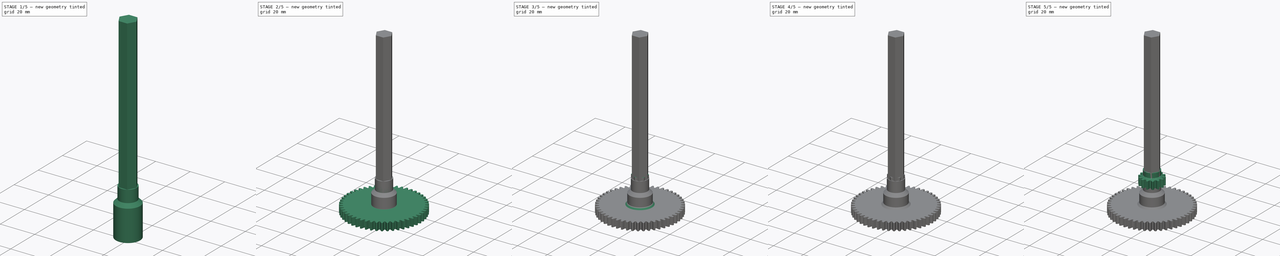
[diagram: build sequence overview — one tinted view per stage of 5, left to right]
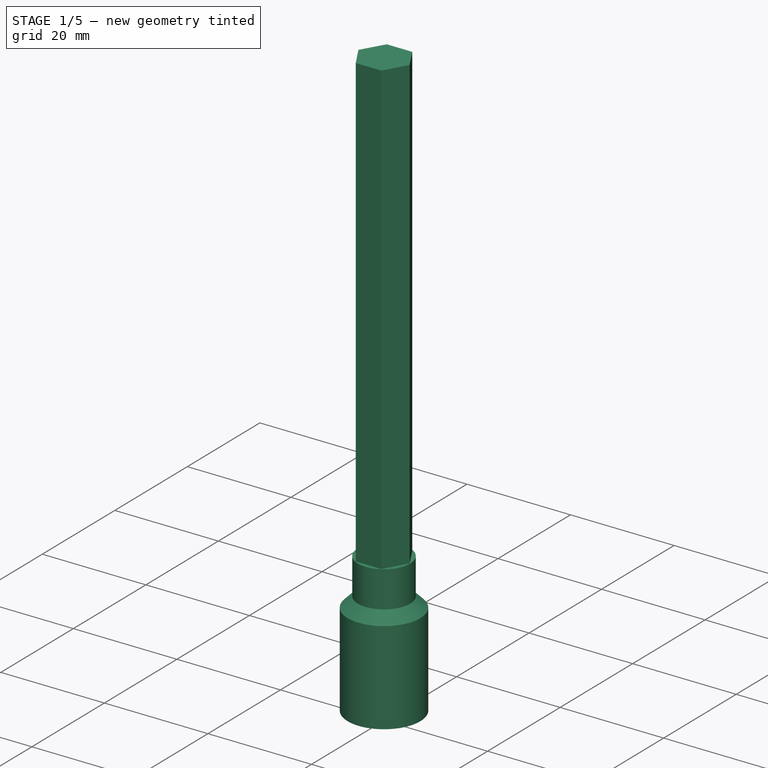
[diagram: stage 1 of 5 — iso view after this stage's code; geometry added in this stage tinted green]
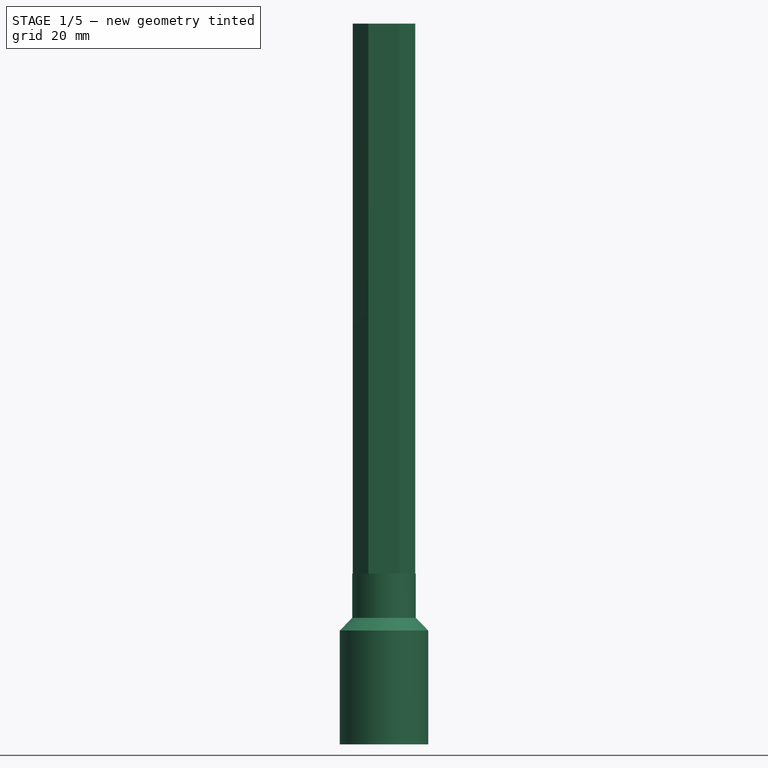
[diagram: stage 1 of 5 — front view after this stage's code; geometry added in this stage tinted green]
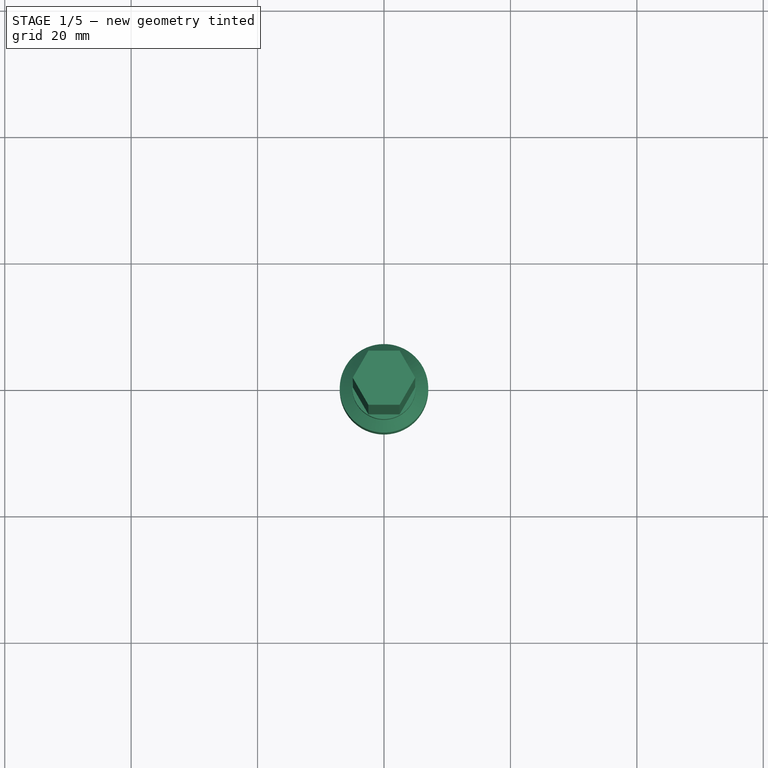
[diagram: stage 1 of 5 — top view after this stage's code; geometry added in this stage tinted green]
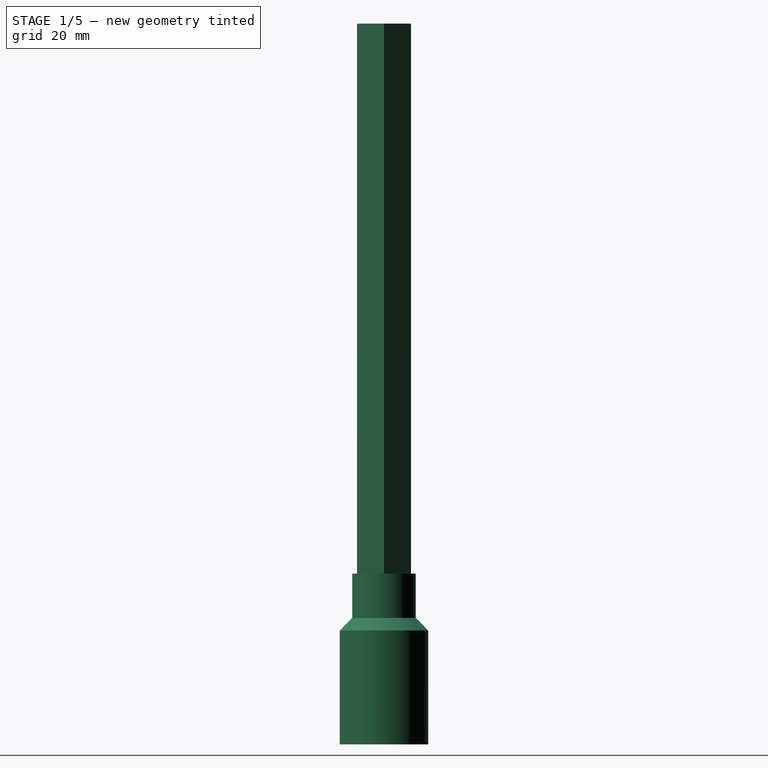
[diagram: stage 1 of 5 — right view after this stage's code; geometry added in this stage tinted green]
FCSTD DOCUMENT  (FreeCAD 0.20R29177 +426 (Git))
Label: DirectGear14-40
License: All rights reserved
LicenseURL: http://en.wikipedia.org/wiki/All_rights_reserved
objects: Sketcher::SketchObject×34, PartDesign::Pad×24, PartDesign::Body×10, PartDesign::Revolution×8, Part::Part2DObjectPython×6, PartDesign::Pocket×6, Spreadsheet::Sheet×2
note: 126 computed .brp shape members not serialized (recipe doc carries the construction recipe); baked Part::Feature solids carry a one-line shape summary decoded from their .brp

FEATURE [PartDesign::Body] Body001005  label="Body001005OuterConnrodToHex"
  Group = -> [Sketch024,Pad018,Sketch025,Pad019,Sketch026,Revolution006,Sketch027,Pocket004]
  Origin = -> Origin006
  Tip = -> Pocket004
FEATURE [Sketcher::SketchObject] Sketch028
  FullyConstrained = true
  MapMode = 5
  Support = -> [XY_Plane007]
  expr: Constraints[19] = Spreadsheet.hexSocketMaleR
  sketch-geometry (7):
    g0: LineSegment StartX=4.94 StartY=0 StartZ=0 EndX=2.47 EndY=4.27817 EndZ=0
    g1: LineSegment StartX=2.47 StartY=4.27817 StartZ=0 EndX=-2.47 EndY=4.27817 EndZ=0
    g2: LineSegment StartX=-2.47 StartY=4.27817 StartZ=0 EndX=-4.94 EndY=4.3761e-12 EndZ=0
    g3: LineSegment StartX=-4.94 StartY=4.3761e-12 StartZ=0 EndX=-2.47 EndY=-4.27817 EndZ=0
    g4: LineSegment StartX=-2.47 StartY=-4.27817 StartZ=0 EndX=2.47 EndY=-4.27817 EndZ=0
    g5: LineSegment StartX=2.47 StartY=-4.27817 StartZ=0 EndX=4.94 EndY=0 EndZ=0
    g6: Circle CenterX=0 CenterY=0 CenterZ=0 NormalX=0 NormalY=0 NormalZ=1 AngleXU=0 Radius=4.94
  constraints (16):
    c: Coincident(g0,g1)
    c: Coincident(g1,g2)
    c: Coincident(g2,g3)
    c: Coincident(g3,g4)
    c: Coincident(g4,g5)
    c: Coincident(g5,g0)
    c: Equal(g0, g1-g5) x5
    c: PointOnObject(g0,g6)
    c: PointOnObject(g1,g6)
    c: PointOnObject(g2,g6)
    c: PointOnObject(g3,g6)
    c: PointOnObject(g4,g6)
    c: PointOnObject(g5,g6)
    c: Coincident(g6,g-1)
    c: PointOnObject(g5,g-1)
    c: Radius(g6) = 4.94
FEATURE [PartDesign::Pad] Pad020
  Direction = (0,0,1)
  Length = 108
  Length2 = 10
  Profile = -> Sketch028
  ReferenceAxis = -> Sketch028 [N_Axis]
  Type = 0
FEATURE [PartDesign::Body] Body001006  label="Body001006LongHexRod100"
  Group = -> [Sketch028,Pad020]
  Origin = -> Origin007
  Tip = -> Pad020
FEATURE [Sketcher::SketchObject] Sketch029
  FullyConstrained = true
  MapMode = 5
  Support = -> [XY_Plane008]
  expr: Constraints[1] = Spreadsheet001.hexToHexOuterR
  expr: Constraints[21] = Spreadsheet.femalHexSocketR
  sketch-geometry (8):
    g0: Circle CenterX=0 CenterY=0 CenterZ=0 NormalX=0 NormalY=0 NormalZ=1 AngleXU=0 Radius=7
    g1: LineSegment StartX=4.965 StartY=0 StartZ=0 EndX=2.4825 EndY=4.29982 EndZ=0
    g2: LineSegment StartX=2.4825 StartY=4.29982 StartZ=0 EndX=-2.4825 EndY=4.29982 EndZ=0
    g3: LineSegment StartX=-2.4825 StartY=4.29982 StartZ=0 EndX=-4.965 EndY=3.5509e-12 EndZ=0
    g4: LineSegment StartX=-4.965 StartY=3.5509e-12 StartZ=0 EndX=-2.4825 EndY=-4.29982 EndZ=0
    g5: LineSegment StartX=-2.4825 StartY=-4.29982 StartZ=0 EndX=2.4825 EndY=-4.29982 EndZ=0
    g6: LineSegment StartX=2.4825 StartY=-4.29982 StartZ=0 EndX=4.965 EndY=0 EndZ=0
    g7: Circle CenterX=0 CenterY=0 CenterZ=0 NormalX=0 NormalY=0 NormalZ=1 AngleXU=0 Radius=4.965
  constraints (18):
    c: Coincident(g0,g-1)
    c: Radius(g0) = 7
    c: Coincident(g1,g2)
    c: Coincident(g2,g3)
    c: Coincident(g3,g4)
    c: Coincident(g4,g5)
    c: Coincident(g5,g6)
    c: Coincident(g6,g1)
    c: Equal(g1, g2-g6) x5
    c: PointOnObject(g1,g7)
    c: PointOnObject(g2,g7)
    c: PointOnObject(g3,g7)
    c: PointOnObject(g4,g7)
    c: PointOnObject(g5,g7)
    c: PointOnObject(g6,g7)
    c: Coincident(g7,g0)
    c: PointOnObject(g6,g-1)
    c: Radius(g7) = 4.965
FEATURE [PartDesign::Pad] Pad021
  Direction = (0,0,1)
  Length = 12
  Length2 = 10
  Midplane = true
  Profile = -> Sketch029
  ReferenceAxis = -> Sketch029 [N_Axis]
  Type = 0
  expr: Length = Spreadsheet001.hexToHexTotalLen
FEATURE [Sketcher::SketchObject] Sketch030
  FullyConstrained = true
  MapMode = 5
  Support = -> [XY_Plane008]
  expr: Constraints[1] = Spreadsheet001.hexToHexOuterR
  sketch-geometry (1):
    g0: Circle CenterX=0 CenterY=0 CenterZ=0 NormalX=0 NormalY=0 NormalZ=1 AngleXU=0 Radius=7
  constraints (2):
    c: Coincident(g0,g-1)
    c: Radius(g0) = 7
FEATURE [Spreadsheet::Sheet] Spreadsheet001
  cells = A2=hexToHexOuterR; B2(hexToHexOuterR)=7; A3=hexToHexCenterLen; B3(hexToHexCenterLen)=2; A4=hexToHexTotalLen; B4(hexToHexTotalLen)=12; A7=endShaftInnerLen; B7(endShaftInnerLen)=12; A8=endShaftInnerCenterLen; B8(endShaftInnerCenterLen)==B7 + 9; A9=endShaftInnerTotalLen; B9(endShaftInnerTotalLen)==B8 + 9
FEATURE [PartDesign::Pad] Pad022
  BaseFeature = -> Pad021
  Direction = (0,0,1)
  Length = 2
  Length2 = 10
  Midplane = true
  Profile = -> Sketch030
  ReferenceAxis = -> Sketch030 [N_Axis]
  Type = 0
  expr: Length = Spreadsheet001.hexToHexCenterLen
FEATURE [PartDesign::Body] Body001007  label="Body001007HexToHexConn"
  Group = -> [Sketch029,Pad021,Sketch030,Pad022]
  Origin = -> Origin008
  Tip = -> Pad022
FEATURE [Sketcher::SketchObject] Sketch031
  FullyConstrained = true
  MapMode = 5
  Support = -> [XY_Plane009]
  expr: Constraints[1] = Spreadsheet001.hexToHexOuterR
  sketch-geometry (1):
    g0: Circle CenterX=0 CenterY=0 CenterZ=0 NormalX=0 NormalY=0 NormalZ=1 AngleXU=0 Radius=7
  constraints (2):
    c: Coincident(g0,g-1)
    c: Radius(g0) = 7
FEATURE [PartDesign::Pad] Pad023
  Direction = (0,0,1)
  Length = 12
  Length2 = 10
  Profile = -> Sketch031
  ReferenceAxis = -> Sketch031 [N_Axis]
  Type = 0
  expr: Length = Spreadsheet001.endShaftInnerLen
FEATURE [Sketcher::SketchObject] Sketch032  label="Sketch032hexHold"
  FullyConstrained = true
  MapMode = 5
  Support = -> [XY_Plane009]
  expr: Constraints[19] = Spreadsheet.femalHexSocketR
  sketch-geometry (7):
    g0: LineSegment StartX=4.965 StartY=0 StartZ=0 EndX=2.4825 EndY=4.29982 EndZ=0
    g1: LineSegment StartX=2.4825 StartY=4.29982 StartZ=0 EndX=-2.4825 EndY=4.29982 EndZ=0
    g2: LineSegment StartX=-2.4825 StartY=4.29982 StartZ=0 EndX=-4.965 EndY=0 EndZ=0
    g3: LineSegment StartX=-4.965 StartY=0 StartZ=0 EndX=-2.4825 EndY=-4.29982 EndZ=0
    g4: LineSegment StartX=-2.4825 StartY=-4.29982 StartZ=0 EndX=2.4825 EndY=-4.29982 EndZ=0
    g5: LineSegment StartX=2.4825 StartY=-4.29982 StartZ=0 EndX=4.965 EndY=0 EndZ=0
    g6: Circle CenterX=0 CenterY=0 CenterZ=0 NormalX=0 NormalY=0 NormalZ=1 AngleXU=0 Radius=4.965
  constraints (16):
    c: Coincident(g0,g1)
    c: Coincident(g1,g2)
    c: Coincident(g2,g3)
    c: Coincident(g3,g4)
    c: Coincident(g4,g5)
    c: Coincident(g5,g0)
    c: Equal(g0, g1-g5) x5
    c: PointOnObject(g0,g6)
    c: PointOnObject(g1,g6)
    c: PointOnObject(g2,g6)
    c: PointOnObject(g3,g6)
    c: PointOnObject(g4,g6)
    c: PointOnObject(g5,g6)
    c: Coincident(g6,g-1)
    c: PointOnObject(g5,g-1)
    c: Radius(g6) = 4.965
FEATURE [Sketcher::SketchObject] Sketch033
  FullyConstrained = true
  MapMode = 5
  Support = -> [XY_Plane009]
  expr: Constraints[1] = Spreadsheet.centerShaftR
  sketch-geometry (1):
    g0: Circle CenterX=0 CenterY=0 CenterZ=0 NormalX=0 NormalY=0 NormalZ=1 AngleXU=0 Radius=5.03
  constraints (2):
    c: Coincident(g0,g-1)
    c: Radius(g0) = 5.03
FEATURE [PartDesign::Pad] Pad024
  BaseFeature = -> Pad023
  Direction = (0,0,1)
  Length = 21
  Length2 = 10
  Profile = -> Sketch033
  ReferenceAxis = -> Sketch033 [N_Axis]
  Type = 0
  expr: Length = Spreadsheet001.endShaftInnerCenterLen
FEATURE [Sketcher::SketchObject] Sketch034  label="Sketch034hexShaftMale"
  FullyConstrained = true
  MapMode = 5
  Support = -> [XY_Plane009]
  expr: Constraints[19] = Spreadsheet.hexSocketMaleR
  sketch-geometry (7):
    g0: LineSegment StartX=4.94 StartY=0 StartZ=0 EndX=2.47 EndY=4.27817 EndZ=0
    g1: LineSegment StartX=2.47 StartY=4.27817 StartZ=0 EndX=-2.47 EndY=4.27817 EndZ=0
    g2: LineSegment StartX=-2.47 StartY=4.27817 StartZ=0 EndX=-4.94 EndY=6.3496e-12 EndZ=0
    g3: LineSegment StartX=-4.94 StartY=6.3496e-12 StartZ=0 EndX=-2.47 EndY=-4.27817 EndZ=0
    g4: LineSegment StartX=-2.47 StartY=-4.27817 StartZ=0 EndX=2.47 EndY=-4.27817 EndZ=0
    g5: LineSegment StartX=2.47 StartY=-4.27817 StartZ=0 EndX=4.94 EndY=0 EndZ=0
    g6: Circle CenterX=0 CenterY=0 CenterZ=0 NormalX=0 NormalY=0 NormalZ=1 AngleXU=0 Radius=4.94
  constraints (16):
    c: Coincident(g0,g1)
    c: Coincident(g1,g2)
    c: Coincident(g2,g3)
    c: Coincident(g3,g4)
    c: Coincident(g4,g5)
    c: Coincident(g5,g0)
    c: Equal(g0, g1-g5) x5
    c: PointOnObject(g0,g6)
    c: PointOnObject(g1,g6)
    c: PointOnObject(g2,g6)
    c: PointOnObject(g3,g6)
    c: PointOnObject(g4,g6)
    c: PointOnObject(g5,g6)
    c: Coincident(g6,g-1)
    c: PointOnObject(g5,g-1)
    c: Radius(g6) = 4.94
FEATURE [PartDesign::Pad] Pad025
  BaseFeature = -> Pad024
  Direction = (0,0,1)
  Length = 30
  Length2 = 10
  Profile = -> Sketch034
  ReferenceAxis = -> Sketch034 [N_Axis]
  Type = 0
  expr: Length = Spreadsheet001.endShaftInnerTotalLen
FEATURE [PartDesign::Pocket] Pocket005
  BaseFeature = -> Pad025
  Direction = (0,0,-1)
  Length = 5
  Length2 = 5
  Profile = -> Sketch032
  ReferenceAxis = -> Sketch032 [N_Axis]
  Reversed = true
  Type = 0
FEATURE [Sketcher::SketchObject] Sketch035
  ExternalGeometry = -> [Pocket005]
  FullyConstrained = true
  MapMode = 5
  Placement = pos=(0,0,0) rot=(1,0,0;1.5708rad)
  Support = -> [XZ_Plane009]
  sketch-geometry (3):
    g0: LineSegment StartX=5.03 StartY=12 StartZ=0 EndX=7 EndY=12 EndZ=0
    g1: LineSegment StartX=7 StartY=12 StartZ=0 EndX=5.03 EndY=14 EndZ=0
    g2: LineSegment StartX=5.03 StartY=14 StartZ=0 EndX=5.03 EndY=12 EndZ=0
  constraints (9):
    c: Coincident(g0,g-3)
    c: Coincident(g1,g0)
    c: PointOnObject(g1,g-3)
    c: Coincident(g2,g1)
    c: DistanceY(g2,g2) = 2
    c: Coincident(g0,g-4)
    c: Coincident(g2,g0)
    c: DistanceY(g-3,g-3) = 9
    c: DistanceX(g-1,g-4) = 7
FEATURE [PartDesign::Revolution] Revolution007
  Angle = 360
  Axis = (0,-2e-16,1)
  Base = (0,0,0)
  BaseFeature = -> Pocket005
  Profile = -> Sketch035
  ReferenceAxis = -> Sketch035 [V_Axis]
  Reversed = true
FEATURE [PartDesign::Body] Body001008  label="Body001008EndOutputShaft"
  Group = -> [Sketch031,Pad023,Sketch032,Sketch033,Pad024,Sketch034,Pad025,Pocket005,Sketch035,Revolution007]
  Origin = -> Origin009
  Tip = -> Revolution007
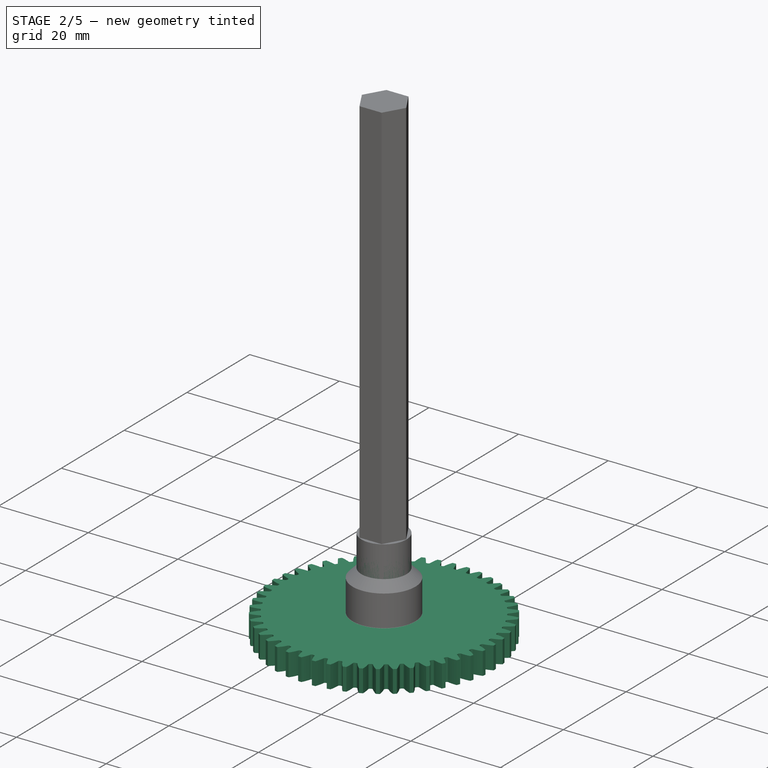
[diagram: stage 2 of 5 — iso view after this stage's code; geometry added in this stage tinted green]
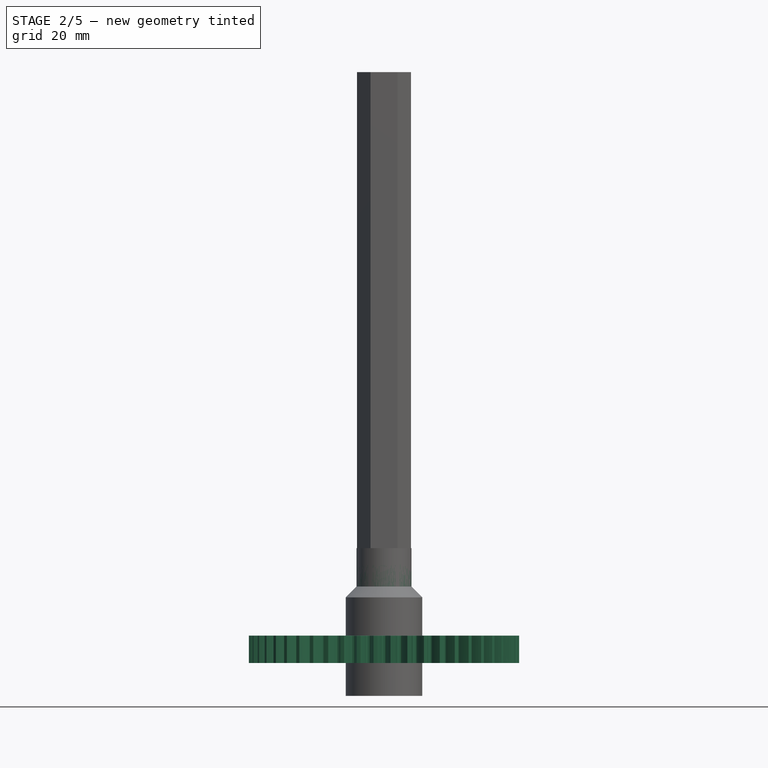
[diagram: stage 2 of 5 — front view after this stage's code; geometry added in this stage tinted green]
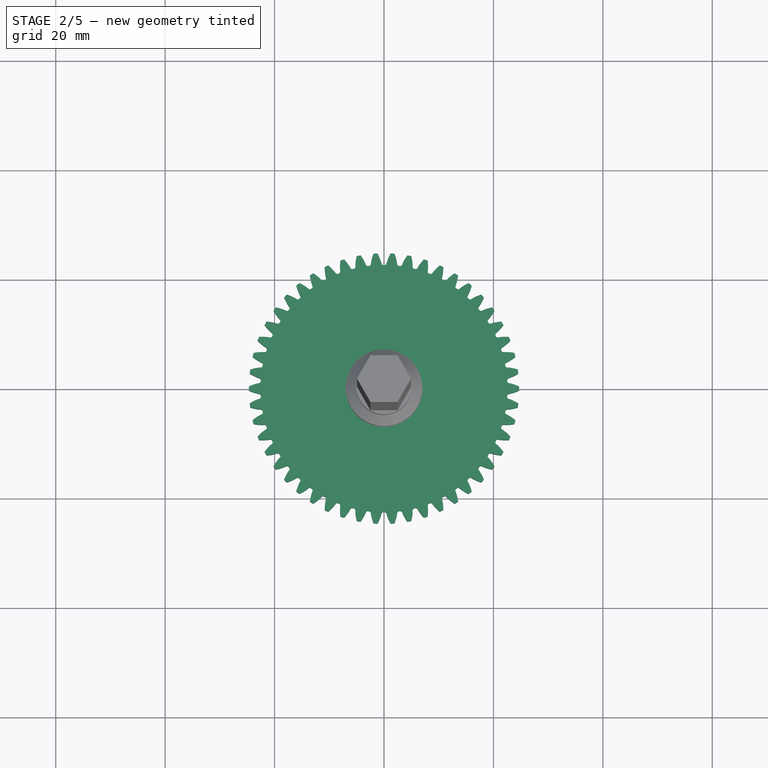
[diagram: stage 2 of 5 — top view after this stage's code; geometry added in this stage tinted green]
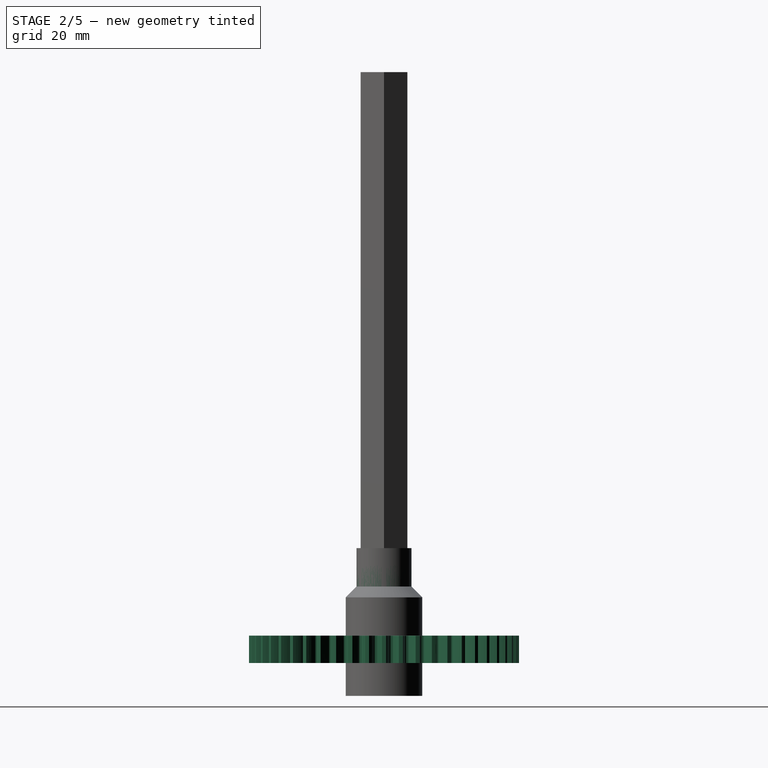
[diagram: stage 2 of 5 — right view after this stage's code; geometry added in this stage tinted green]
FEATURE [PartDesign::Body] Body001003  label="Body001003OuterConnectGear40"
  Group = -> [InvoluteGear004,Pad013,Sketch017,Pad014,Sketch018,Revolution004,Sketch019,Pocket002]
  Origin = -> Origin004
  Tip = -> Pocket002
FEATURE [Part::Part2DObjectPython] InvoluteGear005  # Draft 2D object (typed FeaturePython)
  ExternalGear = true
  HighPrecision = true
  Modules = 0.95
  NumberOfTeeth = 50
  PressureAngle = 20
FEATURE [PartDesign::Pad] Pad015
  Direction = (0,0,1)
  Length = 5
  Length2 = 10
  Profile = -> InvoluteGear005
  ReferenceAxis = -> InvoluteGear005 [N_Axis]
  Type = 0
  expr: Length = Spreadsheet.gearWidth
FEATURE [Sketcher::SketchObject] Sketch020
  FullyConstrained = true
  MapMode = 5
  Support = -> [XY_Plane005]
  expr: Constraints[1] = Spreadsheet.centerShaftR
  sketch-geometry (1):
    g0: Circle CenterX=0 CenterY=0 CenterZ=0 NormalX=0 NormalY=0 NormalZ=1 AngleXU=0 Radius=5.03
  constraints (2):
    c: Coincident(g0,g-1)
    c: Radius(g0) = 5.03
FEATURE [PartDesign::Pad] Pad016
  BaseFeature = -> Pad015
  Direction = (0,0,1)
  Length = 18
  Length2 = 10
  Profile = -> Sketch020
  ReferenceAxis = -> Sketch020 [N_Axis]
  Type = 0
FEATURE [Sketcher::SketchObject] Sketch021
  ExternalGeometry = -> [Pad016]
  FullyConstrained = true
  MapMode = 5
  Placement = pos=(0,0,0) rot=(0.57735,0.57735,0.57735;2.0944rad)
  Support = -> [YZ_Plane005]
  sketch-geometry (3):
    g0: LineSegment StartX=5.03 StartY=5 StartZ=0 EndX=7.03 EndY=5 EndZ=0
    g1: LineSegment StartX=7.03 StartY=5 StartZ=0 EndX=5.03 EndY=7 EndZ=0
    g2: LineSegment StartX=5.03 StartY=5 StartZ=0 EndX=5.03 EndY=7 EndZ=0
  constraints (8):
    c: Coincident(g0,g-3)
    c: Horizontal(g0)
    c: Coincident(g1,g0)
    c: Coincident(g2,g0)
    c: Vertical(g2)
    c: Coincident(g1,g2)
    c: Equal(g0,g2)
    c: DistanceX(g0,g0) = 2
FEATURE [PartDesign::Revolution] Revolution005
  Angle = 360
  Axis = (-2e-16,3e-16,1)
  Base = (0,0,0)
  BaseFeature = -> Pad016
  Profile = -> Sketch021
  ReferenceAxis = -> Sketch021 [V_Axis]
  Reversed = true
FEATURE [PartDesign::Body] Body001004  label="Body001004OuterConnectGearLower50"
  Group = -> [InvoluteGear005,Pad015,Sketch020,Pad016,Sketch021,Revolution005,Sketch022,Pocket003,Sketch023,Pad017]
  Origin = -> Origin005
  Tip = -> Pad017
FEATURE [Sketcher::SketchObject] Sketch024
  AttachmentOffset = pos=(0,0,6) rot=(0,0,1;0rad)
  FullyConstrained = true
  MapMode = 5
  Placement = pos=(0,0,6) rot=(0,0,1;0rad)
  Support = -> [XY_Plane006]
  expr: Constraints[1] = Spreadsheet.centerShaftR
  sketch-geometry (1):
    g0: Circle CenterX=0 CenterY=0 CenterZ=0 NormalX=0 NormalY=0 NormalZ=1 AngleXU=0 Radius=5.03
  constraints (2):
    c: Coincident(g0,g-1)
    c: Radius(g0) = 5.03
FEATURE [PartDesign::Pad] Pad018
  Direction = (0,0,1)
  Length = 5
  Length2 = 10
  Profile = -> Sketch024
  ReferenceAxis = -> Sketch024 [N_Axis]
  Type = 0
FEATURE [Sketcher::SketchObject] Sketch025
  FullyConstrained = true
  MapMode = 5
  Support = -> [XY_Plane006]
  expr: Constraints[18] = Spreadsheet.hexSocketMaleR
  sketch-geometry (7):
    g0: LineSegment StartX=2.47 StartY=-4.27817 StartZ=0 EndX=4.94 EndY=0 EndZ=0
    g1: LineSegment StartX=4.94 StartY=0 StartZ=0 EndX=2.47 EndY=4.27817 EndZ=0
    g2: LineSegment StartX=2.47 StartY=4.27817 StartZ=0 EndX=-2.47 EndY=4.27817 EndZ=0
    g3: LineSegment StartX=-2.47 StartY=4.27817 StartZ=0 EndX=-4.94 EndY=-9e-16 EndZ=0
    g4: LineSegment StartX=-4.94 StartY=-9e-16 StartZ=0 EndX=-2.47 EndY=-4.27817 EndZ=0
    g5: LineSegment StartX=-2.47 StartY=-4.27817 StartZ=0 EndX=2.47 EndY=-4.27817 EndZ=0
    g6: Circle CenterX=0 CenterY=0 CenterZ=0 NormalX=0 NormalY=0 NormalZ=1 AngleXU=0 Radius=4.94
  constraints (16):
    c: Coincident(g0,g1)
    c: Coincident(g1,g2)
    c: Coincident(g2,g3)
    c: Coincident(g3,g4)
    c: Coincident(g4,g5)
    c: Coincident(g5,g0)
    c: Equal(g0, g1-g5) x5
    c: PointOnObject(g0,g6)
    c: PointOnObject(g1,g6)
    c: PointOnObject(g2,g6)
    c: PointOnObject(g3,g6)
    c: PointOnObject(g4,g6)
    c: PointOnObject(g5,g6)
    c: Coincident(g6,g-1)
    c: Radius(g6) = 4.94
    c: PointOnObject(g0,g-1)
FEATURE [PartDesign::Pad] Pad019
  BaseFeature = -> Pad018
  Direction = (0,0,1)
  Length = 22
  Length2 = 10
  Profile = -> Sketch025
  ReferenceAxis = -> Sketch025 [N_Axis]
  Type = 0
FEATURE [Sketcher::SketchObject] Sketch026
  FullyConstrained = true
  MapMode = 5
  Placement = pos=(0,0,0) rot=(1,0,0;1.5708rad)
  Support = -> [XZ_Plane006]
  expr: Constraints[6] = Spreadsheet.centerShaftR
  sketch-geometry (6):
    g0: LineSegment StartX=-5.03 StartY=11 StartZ=0 EndX=-3.83 EndY=11 EndZ=0
    g1: LineSegment StartX=-3.83 StartY=11 StartZ=0 EndX=-3.83 EndY=12.2 EndZ=0
    g2: LineSegment StartX=-3.83 StartY=12.2 StartZ=0 EndX=-5.03 EndY=11 EndZ=0
    g3: LineSegment StartX=-5.03 StartY=6 StartZ=0 EndX=-3.83 EndY=6 EndZ=0
    g4: LineSegment StartX=-3.83 StartY=6 StartZ=0 EndX=-3.83 EndY=4.8 EndZ=0
    g5: LineSegment StartX=-3.83 StartY=4.8 StartZ=0 EndX=-5.03 EndY=6 EndZ=0
  constraints (18):
    c: Horizontal(g0)
    c: Coincident(g1,g0)
    c: Coincident(g2,g1)
    c: Coincident(g2,g0)
    c: Equal(g1,g0)
    c: Vertical(g1)
    c: DistanceX(g0,g-1) = 5.03
    c: DistanceY(g0,g1) = 1.2
    c: DistanceY(g-1,g0) = 11
    c: Horizontal(g3)
    c: Coincident(g4,g3)
    c: Vertical(g4)
    c: Coincident(g5,g4)
    c: Coincident(g5,g3)
    c: Equal(g1,g4)
    c: Equal(g3,g0)
    c: DistanceY(g-1,g3) = 6
    c: DistanceX(g0,g3) = 0
FEATURE [PartDesign::Revolution] Revolution006
  Angle = 360
  Axis = (0,-2e-16,1)
  Base = (0,0,0)
  BaseFeature = -> Pad019
  Profile = -> Sketch026
  ReferenceAxis = -> Sketch026 [V_Axis]
FEATURE [Sketcher::SketchObject] Sketch027
  FullyConstrained = true
  MapMode = 5
  Support = -> [XY_Plane006]
  expr: Constraints[1] = Spreadsheet.screwHoleTight
  sketch-geometry (1):
    g0: Circle CenterX=0 CenterY=0 CenterZ=0 NormalX=0 NormalY=0 NormalZ=1 AngleXU=0 Radius=1.4
  constraints (2):
    c: Coincident(g0,g-1)
    c: Radius(g0) = 1.4
FEATURE [PartDesign::Pocket] Pocket004
  BaseFeature = -> Revolution006
  Direction = (0,0,-1)
  Length = 5
  Length2 = 5
  Midplane = true
  Profile = -> Sketch027
  ReferenceAxis = -> Sketch027 [N_Axis]
  Type = 1
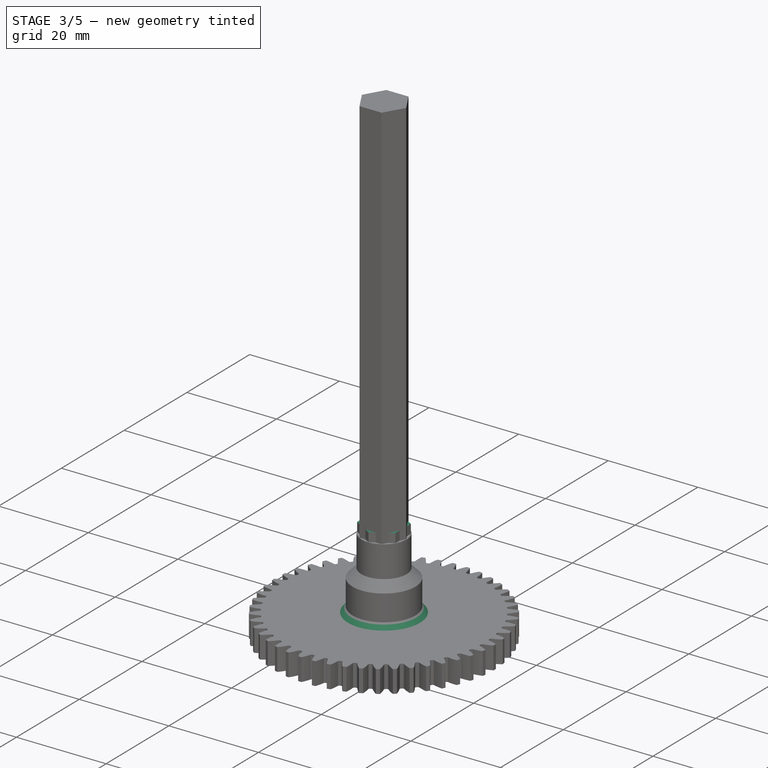
[diagram: stage 3 of 5 — iso view after this stage's code; geometry added in this stage tinted green]
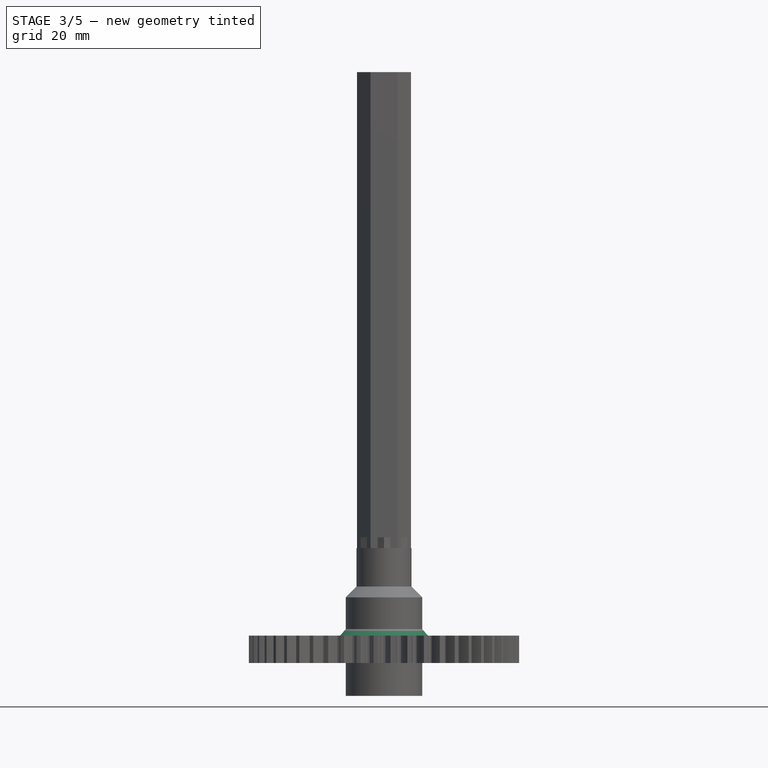
[diagram: stage 3 of 5 — front view after this stage's code; geometry added in this stage tinted green]
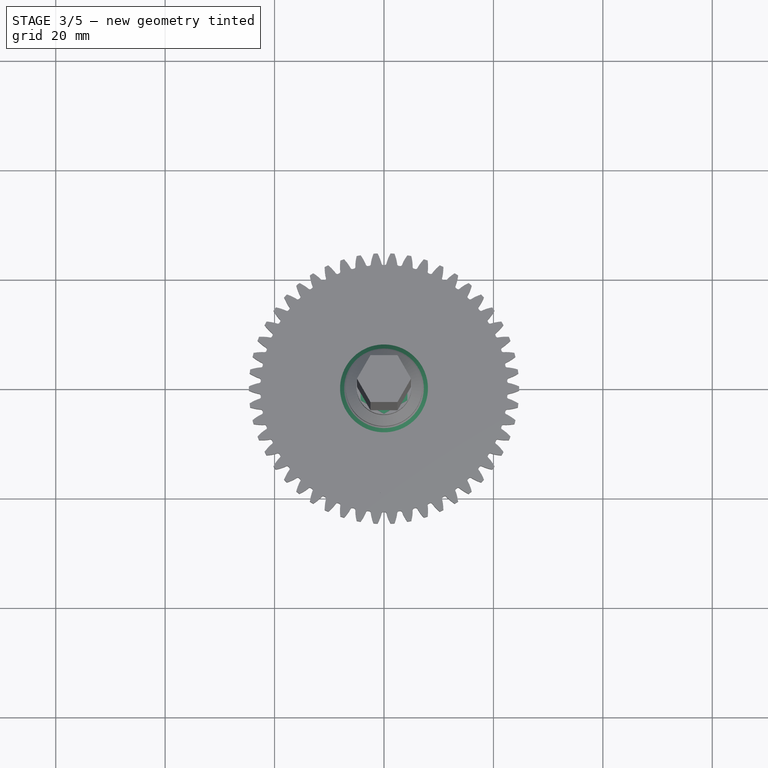
[diagram: stage 3 of 5 — top view after this stage's code; geometry added in this stage tinted green]
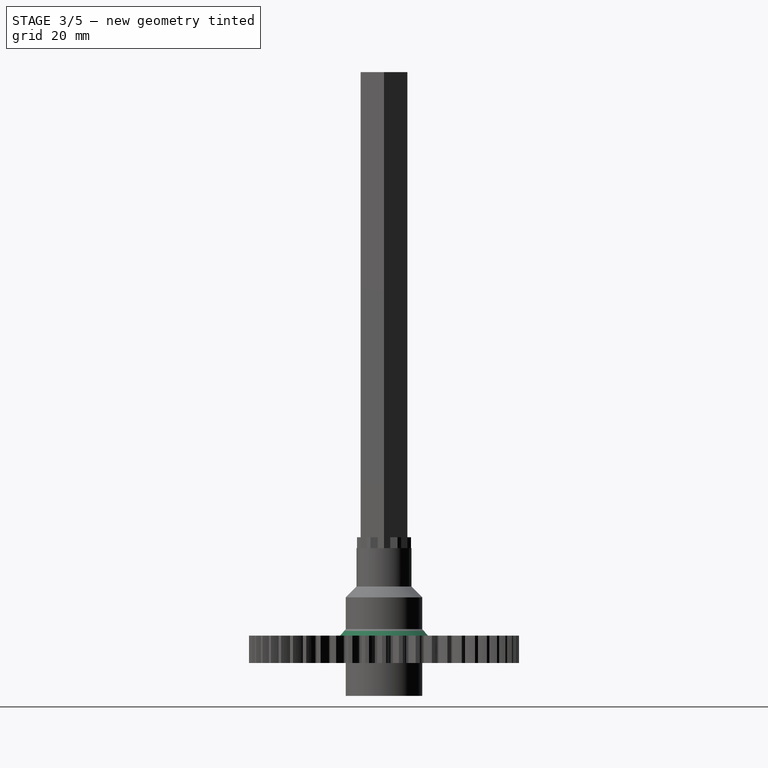
[diagram: stage 3 of 5 — right view after this stage's code; geometry added in this stage tinted green]
FEATURE [PartDesign::Body] Body002  label="Body002OutputGear"
  Group = -> [Sketch010,Pad007,Sketch011,Pad008,Sketch012,Revolution002,InvoluteGear002,Pad009,Sketch013,Pocket001]
  Origin = -> Origin002
  Tip = -> Pocket001
FEATURE [Part::Part2DObjectPython] InvoluteGear003  # Draft 2D object (typed FeaturePython)
  ExternalGear = true
  HighPrecision = true
  Modules = 0.95
  NumberOfTeeth = 14
  PressureAngle = 20
FEATURE [PartDesign::Pad] Pad010
  Direction = (0,0,1)
  Length = 5
  Length2 = 10
  Profile = -> InvoluteGear003
  ReferenceAxis = -> InvoluteGear003 [N_Axis]
  Type = 0
  expr: Length = Spreadsheet.gearWidth
FEATURE [Sketcher::SketchObject] Sketch014
  AttachmentOffset = pos=(0,0,-5) rot=(0,0,1;0rad)
  FullyConstrained = true
  MapMode = 5
  Placement = pos=(0,0,-5) rot=(0,0,1;0rad)
  Support = -> [XY_Plane003]
  expr: .AttachmentOffset.Base.z = -Spreadsheet.hexSocketDepth - 1
  expr: Constraints[1] = Spreadsheet.centerShaftR
  sketch-geometry (1):
    g0: Circle CenterX=0 CenterY=0 CenterZ=0 NormalX=0 NormalY=0 NormalZ=1 AngleXU=0 Radius=5.03
  constraints (2):
    c: Coincident(g0,g-1)
    c: Radius(g0) = 5.03
FEATURE [PartDesign::Pad] Pad011
  BaseFeature = -> Pad010
  Direction = (0,0,1)
  Length = 17
  Length2 = 10
  Profile = -> Sketch014
  ReferenceAxis = -> Sketch014 [N_Axis]
  Type = 0
  expr: Length = Spreadsheet.gearWidth + Spreadsheet.hexSocketDepth + 1 + Spreadsheet.outputBearingBlockSize + 1
FEATURE [PartDesign::Body] Body001002  label="Body001002InputConnect"
  Group = -> [InvoluteGear003,Pad010,Sketch014,Pad011,Sketch015,Revolution003,Sketch016,Pad012]
  Origin = -> Origin003
  Tip = -> Pad012
FEATURE [Part::Part2DObjectPython] InvoluteGear004  # Draft 2D object (typed FeaturePython)
  ExternalGear = true
  HighPrecision = true
  Modules = 0.95
  NumberOfTeeth = 40
  PressureAngle = 20
FEATURE [PartDesign::Pad] Pad013
  Direction = (0,0,1)
  Length = 5
  Length2 = 10
  Profile = -> InvoluteGear004
  ReferenceAxis = -> InvoluteGear004 [N_Axis]
  Type = 0
  expr: Length = Spreadsheet.gearWidth
FEATURE [Sketcher::SketchObject] Sketch017
  FullyConstrained = true
  MapMode = 5
  Support = -> [XY_Plane]
  expr: Constraints[1] = Spreadsheet.centerShaftR
  sketch-geometry (1):
    g0: Circle CenterX=0 CenterY=0 CenterZ=0 NormalX=0 NormalY=0 NormalZ=1 AngleXU=0 Radius=5.03
  constraints (2):
    c: Coincident(g0,g-1)
    c: Radius(g0) = 5.03
FEATURE [PartDesign::Pad] Pad014
  BaseFeature = -> Pad013
  Direction = (0,0,1)
  Length = 16
  Length2 = 10
  Profile = -> Sketch017
  ReferenceAxis = -> Sketch017 [N_Axis]
  Type = 0
  expr: Length = Spreadsheet.outerConnectorGear40ShaftLen
FEATURE [Sketcher::SketchObject] Sketch018
  ExternalGeometry = -> [Pad014]
  FullyConstrained = true
  MapMode = 5
  Placement = pos=(0,0,0) rot=(1,0,0;1.5708rad)
  Support = -> [XZ_Plane004]
  expr: Constraints[6] = Spreadsheet.outerConnectorGear40ShaftRevLen
  expr: Constraints[7] = Spreadsheet.outerConnectorGear40ShaftRevLen + 0.5
  sketch-geometry (3):
    g0: LineSegment StartX=5.03 StartY=5 StartZ=0 EndX=8.03 EndY=5 EndZ=0
    g1: LineSegment StartX=8.03 StartY=5 StartZ=0 EndX=5.03 EndY=8.5 EndZ=0
    g2: LineSegment StartX=5.03 StartY=8.5 StartZ=0 EndX=5.03 EndY=5 EndZ=0
  constraints (8):
    c: Coincident(g0,g-3)
    c: Horizontal(g0)
    c: Coincident(g1,g0)
    c: PointOnObject(g1,g-3)
    c: Coincident(g2,g1)
    c: Coincident(g2,g0)
    c: DistanceX(g0,g0) = 3
    c: DistanceY(g2,g2) = 3.5
FEATURE [PartDesign::Revolution] Revolution004
  Angle = 360
  Axis = (0,-2e-16,1)
  Base = (0,0,0)
  BaseFeature = -> Pad014
  Profile = -> Sketch018
  ReferenceAxis = -> Sketch018 [V_Axis]
  Reversed = true
FEATURE [Sketcher::SketchObject] Sketch019
  FullyConstrained = false
  MapMode = 5
  Support = -> [XY_Plane]
  expr: Constraints[18] = Spreadsheet.femalHexSocketR
  sketch-geometry (7):
    g0: LineSegment StartX=4.21806 StartY=-2.61901 StartZ=0 EndX=4.37716 EndY=2.34344 EndZ=0
    g1: LineSegment StartX=4.37716 StartY=2.34344 StartZ=0 EndX=0.159102 EndY=4.96245 EndZ=0
    g2: LineSegment StartX=0.159102 StartY=4.96245 StartZ=0 EndX=-4.21806 EndY=2.61901 EndZ=0
    g3: LineSegment StartX=-4.21806 StartY=2.61901 StartZ=0 EndX=-4.37716 EndY=-2.34344 EndZ=0
    g4: LineSegment StartX=-4.37716 StartY=-2.34344 StartZ=0 EndX=-0.159102 EndY=-4.96245 EndZ=0
    g5: LineSegment StartX=-0.159102 StartY=-4.96245 StartZ=0 EndX=4.21806 EndY=-2.61901 EndZ=0
    g6: Circle CenterX=0 CenterY=0 CenterZ=0 NormalX=0 NormalY=0 NormalZ=1 AngleXU=0 Radius=4.965
  constraints (15):
    c: Coincident(g0,g1)
    c: Coincident(g1,g2)
    c: Coincident(g2,g3)
    c: Coincident(g3,g4)
    c: Coincident(g4,g5)
    c: Coincident(g5,g0)
    c: Equal(g0, g1-g5) x5
    c: PointOnObject(g0,g6)
    c: PointOnObject(g1,g6)
    c: PointOnObject(g2,g6)
    c: PointOnObject(g3,g6)
    c: PointOnObject(g4,g6)
    c: PointOnObject(g5,g6)
    c: Coincident(g6,g-1)
    c: Radius(g6) = 4.965
FEATURE [PartDesign::Pocket] Pocket002
  BaseFeature = -> Revolution004
  Direction = (0,0,-1)
  Length = 5
  Length2 = 5
  Profile = -> Sketch019
  ReferenceAxis = -> Sketch019 [N_Axis]
  Reversed = true
  Type = 0
FEATURE [Sketcher::SketchObject] Sketch022
  FullyConstrained = true
  MapMode = 5
  Support = -> [XY_Plane005]
  expr: Constraints[18] = Spreadsheet.femalHexSocketR
  sketch-geometry (7):
    g0: LineSegment StartX=2.4825 StartY=-4.29982 StartZ=0 EndX=4.965 EndY=0 EndZ=0
    g1: LineSegment StartX=4.965 StartY=0 StartZ=0 EndX=2.4825 EndY=4.29982 EndZ=0
    g2: LineSegment StartX=2.4825 StartY=4.29982 StartZ=0 EndX=-2.4825 EndY=4.29982 EndZ=0
    g3: LineSegment StartX=-2.4825 StartY=4.29982 StartZ=0 EndX=-4.965 EndY=9e-16 EndZ=0
    g4: LineSegment StartX=-4.965 StartY=9e-16 StartZ=0 EndX=-2.4825 EndY=-4.29982 EndZ=0
    g5: LineSegment StartX=-2.4825 StartY=-4.29982 StartZ=0 EndX=2.4825 EndY=-4.29982 EndZ=0
    g6: Circle CenterX=0 CenterY=0 CenterZ=0 NormalX=0 NormalY=0 NormalZ=1 AngleXU=0 Radius=4.965
  constraints (16):
    c: Coincident(g0,g1)
    c: Coincident(g1,g2)
    c: Coincident(g2,g3)
    c: Coincident(g3,g4)
    c: Coincident(g4,g5)
    c: Coincident(g5,g0)
    c: Equal(g0, g1-g5) x5
    c: PointOnObject(g0,g6)
    c: PointOnObject(g1,g6)
    c: PointOnObject(g2,g6)
    c: PointOnObject(g3,g6)
    c: PointOnObject(g4,g6)
    c: PointOnObject(g5,g6)
    c: Coincident(g6,g-1)
    c: Radius(g6) = 4.965
    c: PointOnObject(g0,g-1)
FEATURE [PartDesign::Pocket] Pocket003
  BaseFeature = -> Revolution005
  Direction = (0,0,-1)
  Length = 5
  Length2 = 5
  Profile = -> Sketch022
  ReferenceAxis = -> Sketch022 [N_Axis]
  Reversed = true
  Type = 0
FEATURE [Sketcher::SketchObject] Sketch023
  FullyConstrained = true
  MapMode = 5
  Placement = pos=(0,0,18) rot=(0,0,1;0rad)
  Support = -> [Pocket003]
  expr: Constraints[19] = Spreadsheet.hexSocketMaleR
  sketch-geometry (7):
    g0: LineSegment StartX=0 StartY=-4.94 StartZ=0 EndX=4.27817 EndY=-2.47 EndZ=0
    g1: LineSegment StartX=4.27817 StartY=-2.47 StartZ=0 EndX=4.27817 EndY=2.47 EndZ=0
    g2: LineSegment StartX=4.27817 StartY=2.47 StartZ=0 EndX=9e-16 EndY=4.94 EndZ=0
    g3: LineSegment StartX=9e-16 StartY=4.94 StartZ=0 EndX=-4.27817 EndY=2.47 EndZ=0
    g4: LineSegment StartX=-4.27817 StartY=2.47 StartZ=0 EndX=-4.27817 EndY=-2.47 EndZ=0
    g5: LineSegment StartX=-4.27817 StartY=-2.47 StartZ=0 EndX=0 EndY=-4.94 EndZ=0
    g6: Circle CenterX=0 CenterY=0 CenterZ=0 NormalX=0 NormalY=0 NormalZ=1 AngleXU=0 Radius=4.94
  constraints (16):
    c: Coincident(g0,g1)
    c: Coincident(g1,g2)
    c: Coincident(g2,g3)
    c: Coincident(g3,g4)
    c: Coincident(g4,g5)
    c: Coincident(g5,g0)
    c: Equal(g0, g1-g5) x5
    c: PointOnObject(g0,g6)
    c: PointOnObject(g1,g6)
    c: PointOnObject(g2,g6)
    c: PointOnObject(g3,g6)
    c: PointOnObject(g4,g6)
    c: PointOnObject(g5,g6)
    c: Coincident(g6,g-1)
    c: PointOnObject(g5,g-2)
    c: Radius(g6) = 4.94
FEATURE [PartDesign::Pad] Pad017
  BaseFeature = -> Pocket003
  Direction = (0,0,1)
  Length = 5
  Length2 = 10
  Profile = -> Sketch023
  ReferenceAxis = -> Sketch023 [N_Axis]
  Type = 0
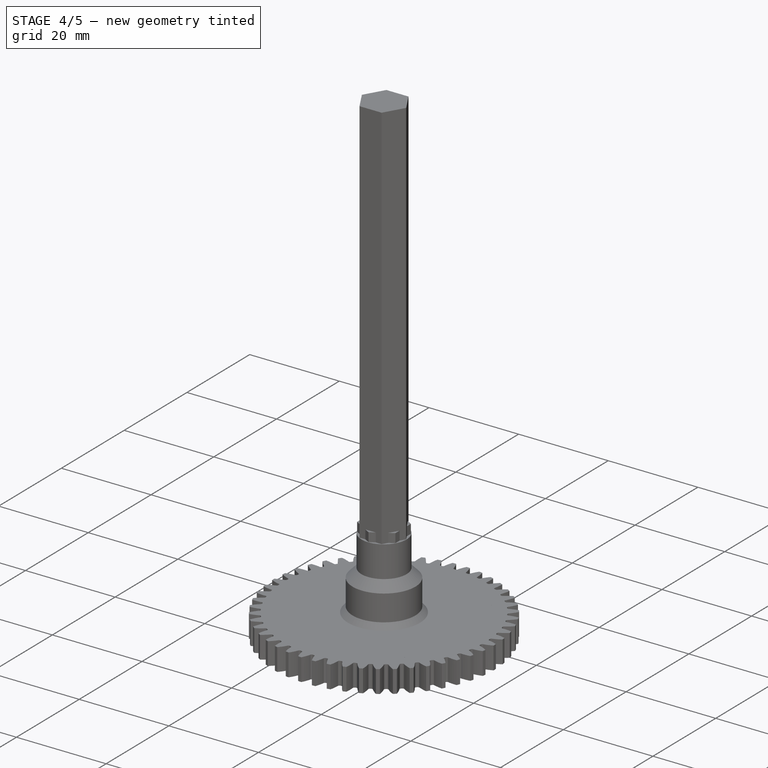
[diagram: stage 4 of 5 — iso view after this stage's code; geometry added in this stage tinted green]
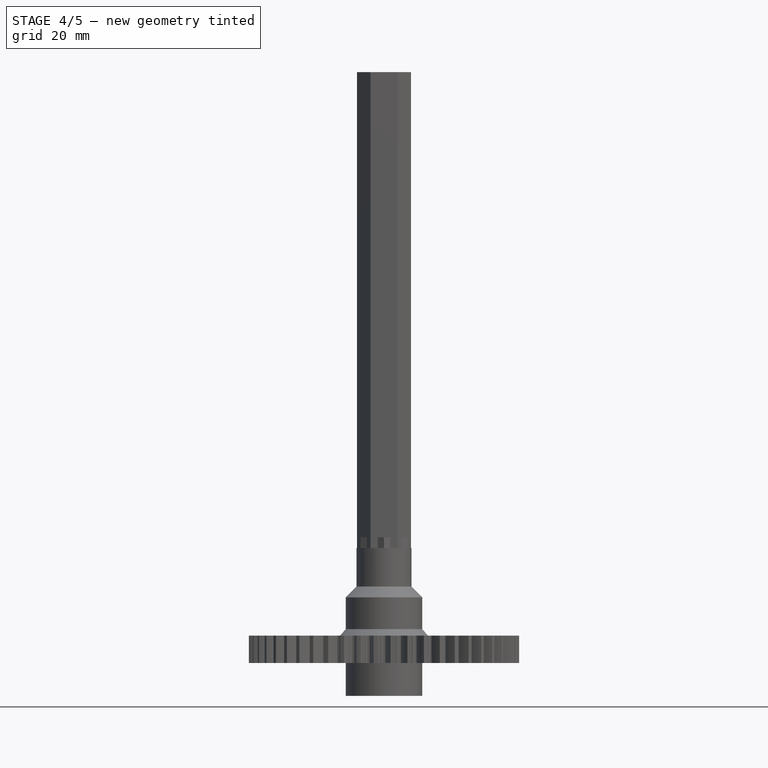
[diagram: stage 4 of 5 — front view after this stage's code; geometry added in this stage tinted green]
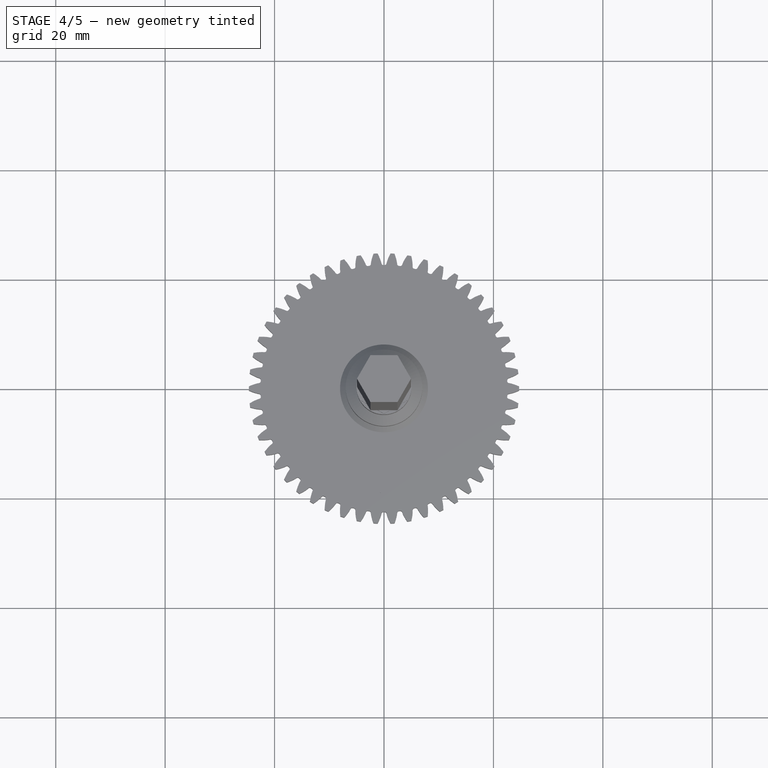
[diagram: stage 4 of 5 — top view after this stage's code; geometry added in this stage tinted green]
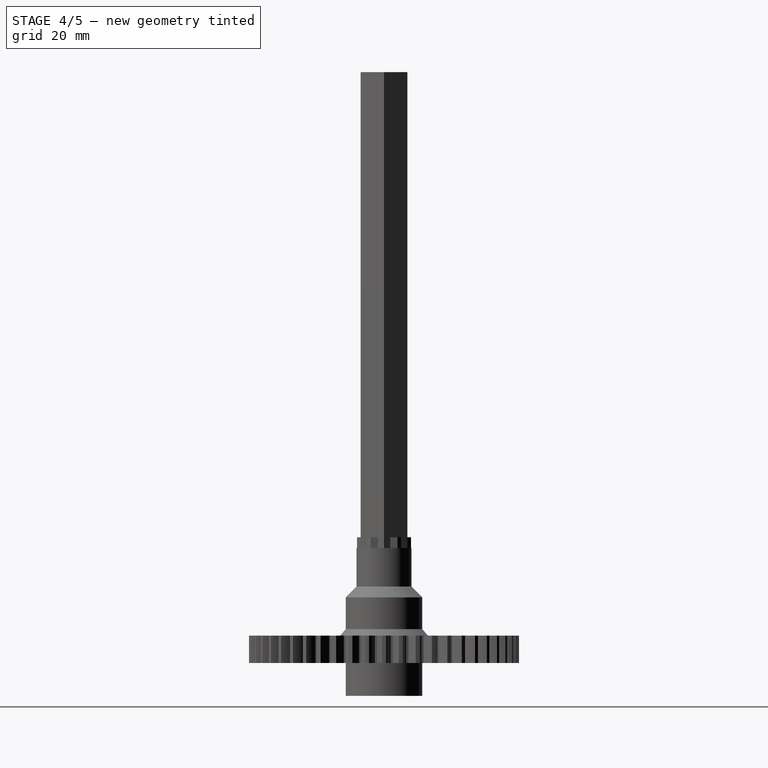
[diagram: stage 4 of 5 — right view after this stage's code; geometry added in this stage tinted green]
FEATURE [PartDesign::Body] Body001  label="Body001Connector"
  Group = -> [Sketch007,Pad005,Sketch008,Pad006,Sketch009,Revolution001]
  Origin = -> Origin001
  Tip = -> Revolution001
FEATURE [Sketcher::SketchObject] Sketch010
  FullyConstrained = true
  MapMode = 5
  Support = -> [XY_Plane002]
  expr: Constraints[1] = Spreadsheet.centerShaftR
  sketch-geometry (1):
    g0: Circle CenterX=0 CenterY=0 CenterZ=0 NormalX=0 NormalY=0 NormalZ=1 AngleXU=0 Radius=5.03
  constraints (2):
    c: Coincident(g0,g-1)
    c: Radius(g0) = 5.03
FEATURE [PartDesign::Pad] Pad007
  Direction = (0,0,1)
  Length = 14
  Length2 = 10
  Profile = -> Sketch010
  ReferenceAxis = -> Sketch010 [N_Axis]
  Type = 0
  expr: Length = Spreadsheet.outputShaftLen
FEATURE [Sketcher::SketchObject] Sketch011
  AttachmentOffset = pos=(0,0,14) rot=(0,0,1;0rad)
  FullyConstrained = false
  MapMode = 5
  Placement = pos=(0,0,14) rot=(0,0,1;0rad)
  Support = -> [XY_Plane002]
  expr: .AttachmentOffset.Base.z = Spreadsheet.outputShaftLen
  expr: Constraints[18] = Spreadsheet.hexSocketMaleR
  sketch-geometry (7):
    g0: LineSegment StartX=3.9513 StartY=-2.96494 StartZ=0 EndX=4.54336 EndY=1.93945 EndZ=0
    g1: LineSegment StartX=4.54336 StartY=1.93945 StartZ=0 EndX=0.592066 EndY=4.90439 EndZ=0
    g2: LineSegment StartX=0.592066 StartY=4.90439 StartZ=0 EndX=-3.9513 EndY=2.96494 EndZ=0
    g3: LineSegment StartX=-3.9513 StartY=2.96494 StartZ=0 EndX=-4.54336 EndY=-1.93945 EndZ=0
    g4: LineSegment StartX=-4.54336 StartY=-1.93945 StartZ=0 EndX=-0.592066 EndY=-4.90439 EndZ=0
    g5: LineSegment StartX=-0.592066 StartY=-4.90439 StartZ=0 EndX=3.9513 EndY=-2.96494 EndZ=0
    g6: Circle CenterX=0 CenterY=0 CenterZ=0 NormalX=0 NormalY=0 NormalZ=1 AngleXU=0 Radius=4.94
  constraints (15):
    c: Coincident(g0,g1)
    c: Coincident(g1,g2)
    c: Coincident(g2,g3)
    c: Coincident(g3,g4)
    c: Coincident(g4,g5)
    c: Coincident(g5,g0)
    c: Equal(g0, g1-g5) x5
    c: PointOnObject(g0,g6)
    c: PointOnObject(g1,g6)
    c: PointOnObject(g2,g6)
    c: PointOnObject(g3,g6)
    c: PointOnObject(g4,g6)
    c: PointOnObject(g5,g6)
    c: Coincident(g6,g-1)
    c: Radius(g6) = 4.94
FEATURE [PartDesign::Pad] Pad008
  BaseFeature = -> Pad007
  Direction = (0,0,1)
  Length = 4
  Length2 = 10
  Profile = -> Sketch011
  ReferenceAxis = -> Sketch011 [N_Axis]
  Type = 0
  expr: Length = Spreadsheet.hexSocketDepth
FEATURE [Sketcher::SketchObject] Sketch012  label="Sketch012Ring"
  FullyConstrained = true
  MapMode = 5
  Placement = pos=(0,0,0) rot=(0.57735,0.57735,0.57735;2.0944rad)
  Support = -> [YZ_Plane002]
  expr: Constraints[2] = Spreadsheet.bearingRingWidth
  expr: Constraints[3] = Spreadsheet.bearingRingWidth
  expr: Constraints[4] = Spreadsheet.centerShaftR
  expr: Constraints[8] = Spreadsheet.gearWidth
  sketch-geometry (3):
    g0: LineSegment StartX=5.03 StartY=6 StartZ=0 EndX=6.03 EndY=5 EndZ=0
    g1: LineSegment StartX=6.03 StartY=5 StartZ=0 EndX=5.03 EndY=5 EndZ=0
    g2: LineSegment StartX=5.03 StartY=6 StartZ=0 EndX=5.03 EndY=5 EndZ=0
  constraints (9):
    c: Horizontal(g1)
    c: Vertical(g2)
    c: DistanceX(g1,g1) = 1
    c: DistanceY(g2,g2) = 1
    c: DistanceX(g-1,g1) = 5.03
    c: Coincident(g1,g2)
    c: Coincident(g1,g0)
    c: Coincident(g0,g2)
    c: DistanceY(g-1,g1) = 5
FEATURE [PartDesign::Revolution] Revolution002
  Angle = 360
  Axis = (-2e-16,3e-16,1)
  Base = (0,0,0)
  BaseFeature = -> Pad008
  Profile = -> Sketch012
  ReferenceAxis = -> Sketch012 [V_Axis]
  Reversed = true
FEATURE [Part::Part2DObjectPython] InvoluteGear002  # Draft 2D object (typed FeaturePython)
  ExternalGear = true
  HighPrecision = true
  Modules = 0.95
  NumberOfTeeth = 40
  PressureAngle = 20
FEATURE [PartDesign::Pad] Pad009
  BaseFeature = -> Revolution002
  Direction = (0,0,1)
  Length = 5
  Length2 = 10
  Profile = -> InvoluteGear002
  ReferenceAxis = -> InvoluteGear002 [N_Axis]
  Type = 0
  expr: Length = Spreadsheet.gearWidth
FEATURE [Sketcher::SketchObject] Sketch013
  FullyConstrained = true
  MapMode = 5
  Support = -> [XY_Plane002]
  expr: Constraints[18] = Spreadsheet.femalHexSocketR
  sketch-geometry (7):
    g0: LineSegment StartX=2.4825 StartY=-4.29982 StartZ=0 EndX=4.965 EndY=0 EndZ=0
    g1: LineSegment StartX=4.965 StartY=0 StartZ=0 EndX=2.4825 EndY=4.29982 EndZ=0
    g2: LineSegment StartX=2.4825 StartY=4.29982 StartZ=0 EndX=-2.4825 EndY=4.29982 EndZ=0
    g3: LineSegment StartX=-2.4825 StartY=4.29982 StartZ=0 EndX=-4.965 EndY=0 EndZ=0
    g4: LineSegment StartX=-4.965 StartY=0 StartZ=0 EndX=-2.4825 EndY=-4.29982 EndZ=0
    g5: LineSegment StartX=-2.4825 StartY=-4.29982 StartZ=0 EndX=2.4825 EndY=-4.29982 EndZ=0
    g6: Circle CenterX=0 CenterY=0 CenterZ=0 NormalX=0 NormalY=0 NormalZ=1 AngleXU=0 Radius=4.965
  constraints (16):
    c: Coincident(g0,g1)
    c: Coincident(g1,g2)
    c: Coincident(g2,g3)
    c: Coincident(g3,g4)
    c: Coincident(g4,g5)
    c: Coincident(g5,g0)
    c: Equal(g0, g1-g5) x5
    c: PointOnObject(g0,g6)
    c: PointOnObject(g1,g6)
    c: PointOnObject(g2,g6)
    c: PointOnObject(g3,g6)
    c: PointOnObject(g4,g6)
    c: PointOnObject(g5,g6)
    c: Coincident(g6,g-1)
    c: Radius(g6) = 4.965
    c: PointOnObject(g0,g-1)
FEATURE [PartDesign::Pocket] Pocket001
  BaseFeature = -> Pad009
  Direction = (0,0,-1)
  Length = 4
  Length2 = 5
  Profile = -> Sketch013
  ReferenceAxis = -> Sketch013 [N_Axis]
  Reversed = true
  Type = 0
  expr: Length = Spreadsheet.hexSocketDepth
FEATURE [Sketcher::SketchObject] Sketch015  label="Sketch015ring"
  FullyConstrained = true
  MapMode = 5
  Placement = pos=(0,0,0) rot=(1,0,0;1.5708rad)
  Support = -> [XZ_Plane003]
  expr: Constraints[10] = Spreadsheet.bearingRingWidth
  expr: Constraints[14] = Spreadsheet.centerShaftR
  expr: Constraints[15] = Spreadsheet.centerShaftR
  expr: Constraints[17] = Spreadsheet.gearWidth
  sketch-geometry (6):
    g0: LineSegment StartX=5.03 StartY=6 StartZ=0 EndX=5.03 EndY=5 EndZ=0
    g1: LineSegment StartX=5.03 StartY=5 StartZ=0 EndX=6.03 EndY=5 EndZ=0
    g2: LineSegment StartX=6.03 StartY=5 StartZ=0 EndX=5.03 EndY=6 EndZ=0
    g3: LineSegment StartX=5.03 StartY=0 StartZ=0 EndX=5.03 EndY=-1 EndZ=0
    g4: LineSegment StartX=5.03 StartY=0 StartZ=0 EndX=6.03 EndY=0 EndZ=0
    g5: LineSegment StartX=6.03 StartY=0 StartZ=0 EndX=5.03 EndY=-1 EndZ=0
  constraints (18):
    c: Vertical(g0)
    c: Coincident(g1,g0)
    c: Horizontal(g1)
    c: Coincident(g2,g1)
    c: Coincident(g2,g0)
    c: PointOnObject(g3,g-1)
    c: Vertical(g3)
    c: Coincident(g4,g3)
    c: Coincident(g5,g4)
    c: Coincident(g5,g3)
    c: DistanceX(g1,g1) = 1
    c: Equal(g1,g0)
    c: Equal(g1,g4)
    c: Equal(g4,g3)
    c: DistanceX(g-1,g0) = 5.03
    c: DistanceX(g-1,g3) = 5.03
    c: Horizontal(g4)
    c: DistanceY(g-1,g0) = 5
FEATURE [PartDesign::Revolution] Revolution003
  Angle = 360
  Axis = (0,-2e-16,1)
  Base = (0,0,0)
  BaseFeature = -> Pad011
  Profile = -> Sketch015
  ReferenceAxis = -> Sketch015 [V_Axis]
  Reversed = true
FEATURE [Sketcher::SketchObject] Sketch016  label="Sketch016Hex"
  FullyConstrained = true
  MapMode = 5
  Support = -> [XY_Plane003]
  expr: Constraints[19] = Spreadsheet.hexSocketMaleR
  sketch-geometry (7):
    g0: LineSegment StartX=4.94 StartY=0 StartZ=0 EndX=2.47 EndY=4.27817 EndZ=0
    g1: LineSegment StartX=2.47 StartY=4.27817 StartZ=0 EndX=-2.47 EndY=4.27817 EndZ=0
    g2: LineSegment StartX=-2.47 StartY=4.27817 StartZ=0 EndX=-4.94 EndY=-2.1556e-12 EndZ=0
    g3: LineSegment StartX=-4.94 StartY=-2.1556e-12 StartZ=0 EndX=-2.47 EndY=-4.27817 EndZ=0
    g4: LineSegment StartX=-2.47 StartY=-4.27817 StartZ=0 EndX=2.47 EndY=-4.27817 EndZ=0
    g5: LineSegment StartX=2.47 StartY=-4.27817 StartZ=0 EndX=4.94 EndY=0 EndZ=0
    g6: Circle CenterX=0 CenterY=0 CenterZ=0 NormalX=0 NormalY=0 NormalZ=1 AngleXU=0 Radius=4.94
  constraints (16):
    c: Coincident(g0,g1)
    c: Coincident(g1,g2)
    c: Coincident(g2,g3)
    c: Coincident(g3,g4)
    c: Coincident(g4,g5)
    c: Coincident(g5,g0)
    c: Equal(g0, g1-g5) x5
    c: PointOnObject(g0,g6)
    c: PointOnObject(g1,g6)
    c: PointOnObject(g2,g6)
    c: PointOnObject(g3,g6)
    c: PointOnObject(g4,g6)
    c: PointOnObject(g5,g6)
    c: Coincident(g6,g-1)
    c: PointOnObject(g5,g-1)
    c: Radius(g6) = 4.94
FEATURE [PartDesign::Pad] Pad012
  BaseFeature = -> Revolution003
  Direction = (0,0,1)
  Length = 17
  Length2 = 10
  Profile = -> Sketch016
  ReferenceAxis = -> Sketch016 [N_Axis]
  Type = 0
  expr: Length = Spreadsheet.gearWidth + 1 + Spreadsheet.outputBearingBlockSize + 1 + Spreadsheet.hexSocketDepth
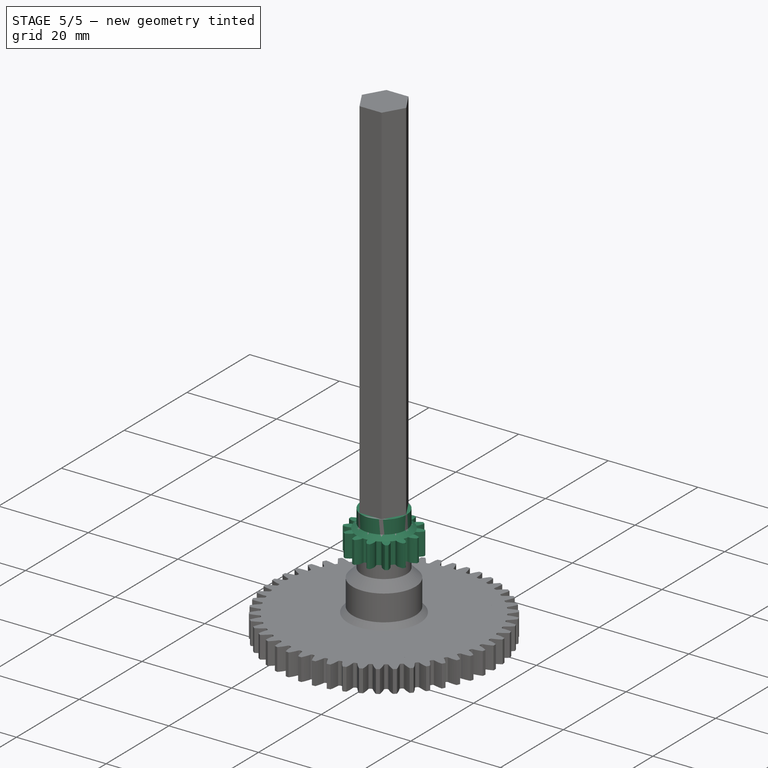
[diagram: stage 5 of 5 — iso view after this stage's code; geometry added in this stage tinted green]
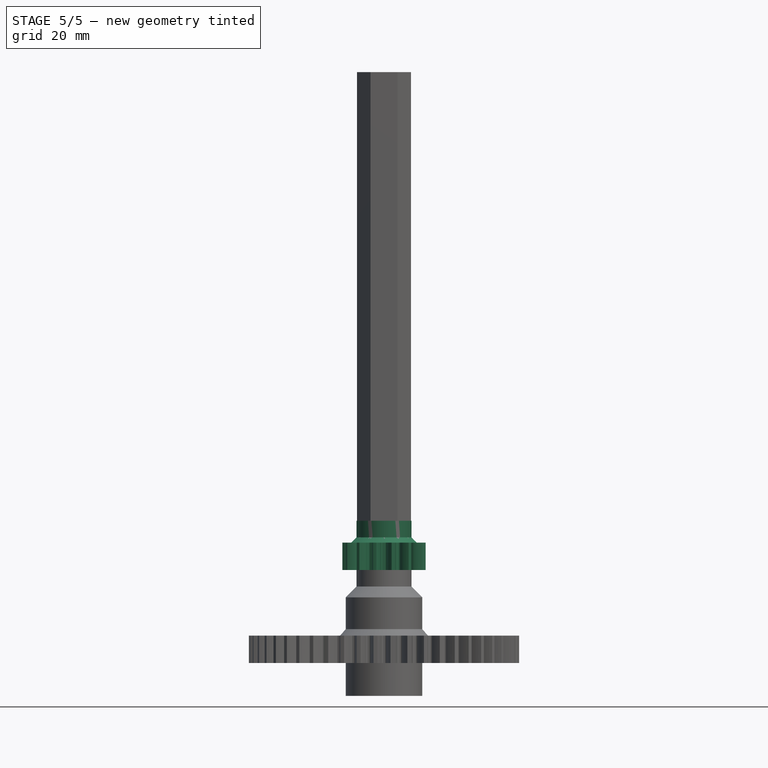
[diagram: stage 5 of 5 — front view after this stage's code; geometry added in this stage tinted green]
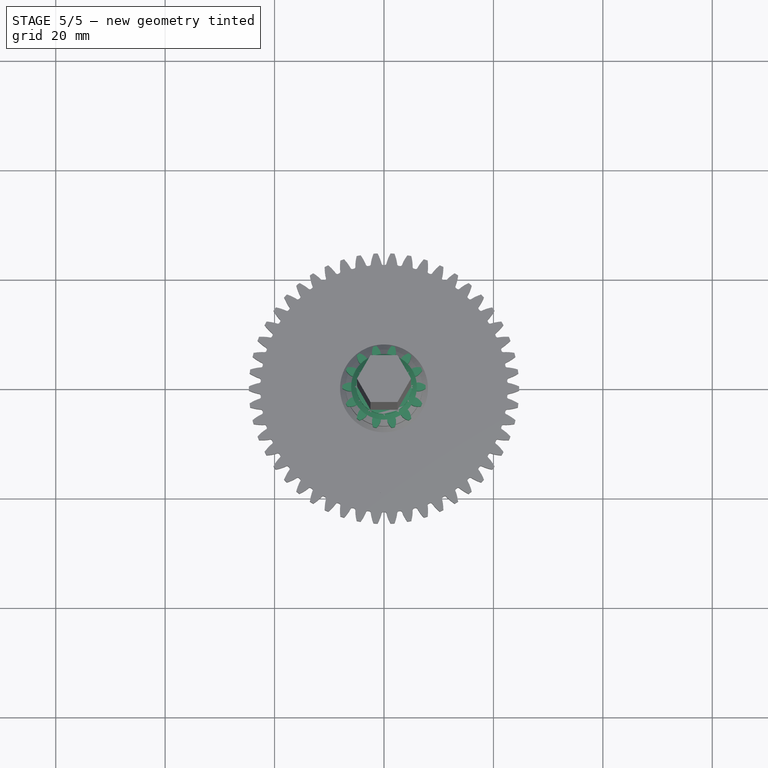
[diagram: stage 5 of 5 — top view after this stage's code; geometry added in this stage tinted green]
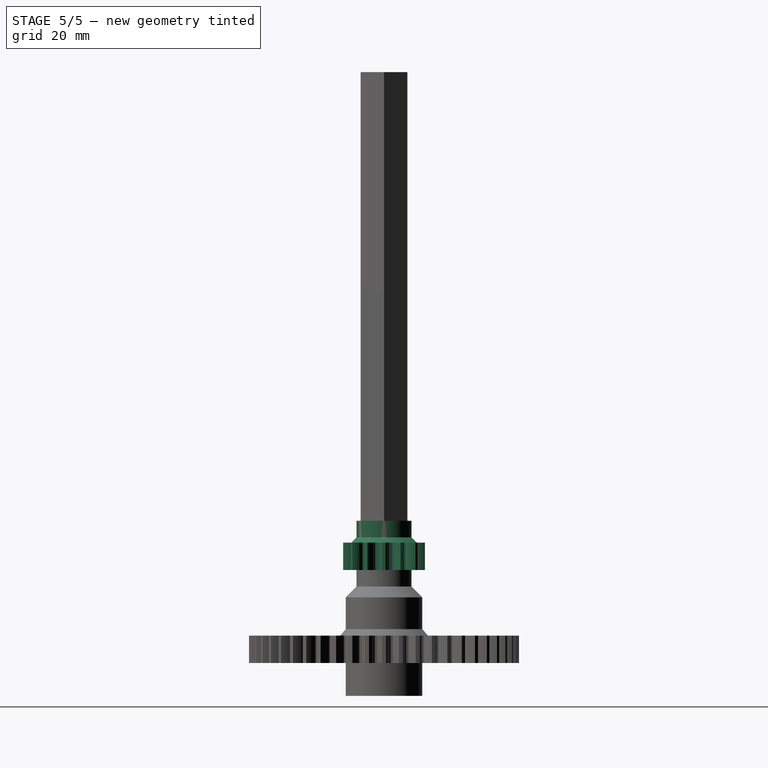
[diagram: stage 5 of 5 — right view after this stage's code; geometry added in this stage tinted green]
FEATURE [Part::Part2DObjectPython] InvoluteGear  label="InvoluteGearCenterSmall14"  # Draft 2D object (typed FeaturePython)
  ExternalGear = true
  HighPrecision = true
  Modules = 0.95
  NumberOfTeeth = 14
  Placement = pos=(0,0,17) rot=(0,0,1;0rad)
  PressureAngle = 20
  expr: .Placement.Base.z = Spreadsheet.gearWidth + Spreadsheet.gearSpacing
FEATURE [PartDesign::Pad] Pad
  Direction = (0,0,1)
  Length = 5
  Length2 = 5
  Placement = pos=(0,0,17) rot=(0,0,1;0rad)
  Profile = -> InvoluteGear
  ReferenceAxis = -> InvoluteGear [N_Axis]
  Type = 0
  expr: Length = Spreadsheet.gearWidth
FEATURE [Part::Part2DObjectPython] InvoluteGear001  label="InvoluteGear001Big40"  # Draft 2D object (typed FeaturePython)
  ExternalGear = true
  HighPrecision = true
  Modules = 0.95
  NumberOfTeeth = 40
  PressureAngle = 20
FEATURE [Spreadsheet::Sheet] Spreadsheet
  cells = A2=centerShaftR; B2(centerShaftR)=5.03; A3=gearWidth; B3(gearWidth)=5; A4=gearSpacing; B4(gearSpacing)==B9 * 2 + 2 + 2; A5=femalHexSocketR; B5(femalHexSocketR)=4.965; A6=smallGearModule; B6(smallGearModule)==3 / 3.14159265; A7=bearingWallSpacingPad; B7=1; A8=bearingWallSpacing; B8(bearingWallSpacing)==B3 * 2 + B4 + B7 * 2; A9=bearingWidth; B9(bearingWidth)=4; A10=hexSocketMaleR; B10(hexSocketMaleR)=4.94; A11=hexSocketDepth; B11(hexSocketDepth)=4; A12=bearingRingWidth; B12(bearingRingWidth)=1; A13=connectorBaseToSocketDist; B13(connectorBaseToSocketDist)==B9 + B12; C13=gearW+bearingW+ring; A14=connectorLength; B14(connectorLength)==B13 + B9; C14=base+bearW; A16=outputBearingBlockSize; B16(outputBearingBlockSize)=6; A17=outputBearingOutsideLen; B17(outputBearingOutsideLen)=5; A18=outputShaftLen; B18(outputShaftLen)==B16 + B17 + 1 + B19; A19=outputShaftLenPad; B19=2; A20=screwHoleTight; B20(screwHoleTight)=1.4; A22=outerConnectorGear40ShaftLen; B22(outerConnectorGear40ShaftLen)=16; C22=was 13, but need some padding changed to 16; A23=outerConnectorGear40ShaftRevLen; B23(outerConnectorGear40ShaftRevLen)=3
FEATURE [Sketcher::SketchObject] Sketch  label="SketchCenterShaft"
  FullyConstrained = true
  MapMode = 5
  Support = -> [XY_Plane]
  expr: Constraints[1] = Spreadsheet.centerShaftR
  sketch-geometry (1):
    g0: Circle CenterX=0 CenterY=0 CenterZ=0 NormalX=0 NormalY=0 NormalZ=1 AngleXU=0 Radius=5.03
  constraints (2):
    c: Coincident(g0,g-1)
    c: Radius(g0) = 5.03
FEATURE [PartDesign::Pad] Pad002  label="Pad002CenterShaft"
  BaseFeature = -> Pad
  Direction = (0,0,1)
  Length = 26
  Length2 = 7
  Placement = pos=(0,0,17) rot=(0,0,1;0rad)
  Profile = -> Sketch
  ReferenceAxis = -> Sketch [N_Axis]
  Type = 0
  expr: Length = Spreadsheet.gearWidth * 2 + Spreadsheet.gearSpacing + 4
FEATURE [PartDesign::Pad] Pad004
  BaseFeature = -> Pad002
  Direction = (0,0,1)
  Length = 5
  Length2 = 10
  Placement = pos=(0,0,17) rot=(0,0,1;0rad)
  Profile = -> InvoluteGear001
  ReferenceAxis = -> InvoluteGear001 [N_Axis]
  Type = 0
  expr: Length = Spreadsheet.gearWidth
FEATURE [Sketcher::SketchObject] Sketch001
  FullyConstrained = true
  MapMode = 5
  Placement = pos=(0,0,0) rot=(1,0,0;1.5708rad)
  Support = -> [XZ_Plane]
  expr: Constraints[4] = Spreadsheet.gearWidth * 2 + Spreadsheet.gearSpacing
  expr: Constraints[7] = Spreadsheet.bearingRingWidth
  expr: Constraints[8] = Spreadsheet.bearingRingWidth
  sketch-geometry (3):
    g0: LineSegment StartX=-6 StartY=22 StartZ=0 EndX=-5 EndY=23 EndZ=0
    g1: LineSegment StartX=-5 StartY=23 StartZ=0 EndX=-5 EndY=22 EndZ=0
    g2: LineSegment StartX=-5 StartY=22 StartZ=0 EndX=-6 EndY=22 EndZ=0
  constraints (9):
    c: Coincident(g2,g1)
    c: Coincident(g2,g0)
    c: Coincident(g0,g1)
    c: DistanceY(g0,g1) = 0
    c: DistanceY(g-1,g1) = 22
    c: DistanceX(g1,g0) = 0
    c: DistanceX(g1,g-1) = 5
    c: DistanceY(g1,g0) = 1
    c: DistanceX(g2,g2) = 1
FEATURE [PartDesign::Revolution] Revolution
  Angle = 360
  Axis = (0,-2e-16,1)
  Base = (0,0,0)
  BaseFeature = -> Pad004
  Placement = pos=(0,0,17) rot=(0,0,1;0rad)
  Profile = -> Sketch001
  ReferenceAxis = -> Sketch001 [V_Axis]
  Reversed = true
FEATURE [Sketcher::SketchObject] Sketch002  label="Sketch002RearHexSocket"
  FullyConstrained = true
  MapMode = 5
  Support = -> [XY_Plane]
  expr: Constraints[19] = Spreadsheet.femalHexSocketR
  sketch-geometry (7):
    g0: LineSegment StartX=4.965 StartY=0 StartZ=0 EndX=2.4825 EndY=4.29982 EndZ=0
    g1: LineSegment StartX=2.4825 StartY=4.29982 StartZ=0 EndX=-2.4825 EndY=4.29982 EndZ=0
    g2: LineSegment StartX=-2.4825 StartY=4.29982 StartZ=0 EndX=-4.965 EndY=1.4211e-12 EndZ=0
    g3: LineSegment StartX=-4.965 StartY=1.4211e-12 StartZ=0 EndX=-2.4825 EndY=-4.29982 EndZ=0
    g4: LineSegment StartX=-2.4825 StartY=-4.29982 StartZ=0 EndX=2.4825 EndY=-4.29982 EndZ=0
    g5: LineSegment StartX=2.4825 StartY=-4.29982 StartZ=0 EndX=4.965 EndY=0 EndZ=0
    g6: Circle CenterX=0 CenterY=0 CenterZ=0 NormalX=0 NormalY=0 NormalZ=1 AngleXU=0 Radius=4.965
  constraints (16):
    c: Coincident(g0,g1)
    c: Coincident(g1,g2)
    c: Coincident(g2,g3)
    c: Coincident(g3,g4)
    c: Coincident(g4,g5)
    c: Coincident(g5,g0)
    c: Equal(g0, g1-g5) x5
    c: PointOnObject(g0,g6)
    c: PointOnObject(g1,g6)
    c: PointOnObject(g2,g6)
    c: PointOnObject(g3,g6)
    c: PointOnObject(g4,g6)
    c: PointOnObject(g5,g6)
    c: Coincident(g6,g-1)
    c: PointOnObject(g5,g-1)
    c: Radius(g6) = 4.965
FEATURE [PartDesign::Pocket] Pocket
  BaseFeature = -> Revolution
  Direction = (0,0,-1)
  Length = 4
  Length2 = 5
  Placement = pos=(0,0,17) rot=(0,0,1;0rad)
  Profile = -> Sketch002
  ReferenceAxis = -> Sketch002 [N_Axis]
  Reversed = true
  Type = 0
FEATURE [Sketcher::SketchObject] Sketch005
  FullyConstrained = false
  MapMode = 5
  Support = -> [XY_Plane]
  sketch-geometry (8):
    g0: Circle CenterX=0 CenterY=0 CenterZ=0 NormalX=0 NormalY=0 NormalZ=1 AngleXU=0 Radius=8.42315
    g1: Circle CenterX=0 CenterY=0 CenterZ=0 NormalX=0 NormalY=0 NormalZ=1 AngleXU=0 Radius=10.5439
    g2: Circle CenterX=0 CenterY=0 CenterZ=0 NormalX=0 NormalY=0 NormalZ=1 AngleXU=0 Radius=17.95
    g3: Circle CenterX=0 CenterY=0 CenterZ=0 NormalX=0 NormalY=0 NormalZ=1 AngleXU=0 Radius=20.09
    g4: Circle CenterX=27.8121 CenterY=-6.88594 CenterZ=0 NormalX=0 NormalY=0 NormalZ=1 AngleXU=0 Radius=20
    g5: Circle CenterX=27.8121 CenterY=-6.88594 CenterZ=0 NormalX=0 NormalY=0 NormalZ=1 AngleXU=0 Radius=17.9
    g6: Circle CenterX=27.8121 CenterY=-6.88594 CenterZ=0 NormalX=0 NormalY=0 NormalZ=1 AngleXU=0 Radius=8.02629
    g7: Circle CenterX=27.8121 CenterY=-6.88594 CenterZ=0 NormalX=0 NormalY=0 NormalZ=1 AngleXU=0 Radius=5.0312
  constraints (11):
    c: Coincident(g0,g-1)
    c: Coincident(g1,g0)
    c: Coincident(g2,g0)
    c: Coincident(g3,g0)
    c: Radius(g2) = 17.95
    c: Radius(g3) = 20.09
    c: Coincident(g5,g4)
    c: Coincident(g6,g4)
    c: Radius(g4) = 20
    c: Radius(g5) = 17.9
    c: Coincident(g7,g4)
FEATURE [Sketcher::SketchObject] Sketch006
  FullyConstrained = true
  MapMode = 5
  Support = -> [XY_Plane]
  sketch-geometry (4):
    g0: Circle CenterX=0 CenterY=0 CenterZ=0 NormalX=0 NormalY=0 NormalZ=1 AngleXU=0 Radius=5.56
    g1: Circle CenterX=0 CenterY=0 CenterZ=0 NormalX=0 NormalY=0 NormalZ=1 AngleXU=0 Radius=7.79
    g2: Circle CenterX=0 CenterY=0 CenterZ=0 NormalX=0 NormalY=0 NormalZ=1 AngleXU=0 Radius=17.9
    g3: Circle CenterX=0 CenterY=0 CenterZ=0 NormalX=0 NormalY=0 NormalZ=1 AngleXU=0 Radius=20
  constraints (8):
    c: Coincident(g0,g-1)
    c: Coincident(g1,g0)
    c: Coincident(g2,g0)
    c: Radius(g0) = 5.56
    c: Radius(g1) = 7.79
    c: Coincident(g3,g0)
    c: Radius(g2) = 17.9
    c: Radius(g3) = 20
FEATURE [PartDesign::Body] Body  label="BodyGear1"
  Group = -> [InvoluteGear,Pad,InvoluteGear001,Sketch,Pad002,Pad004,Sketch001,Revolution,Sketch002,Pocket,Sketch005,Sketch006]
  Origin = -> Origin
  Tip = -> Pocket
FEATURE [Sketcher::SketchObject] Sketch007  label="Sketch007Shaft"
  FullyConstrained = true
  MapMode = 5
  Support = -> [XY_Plane001]
  expr: Constraints[1] = Spreadsheet.centerShaftR
  sketch-geometry (1):
    g0: Circle CenterX=0 CenterY=0 CenterZ=0 NormalX=0 NormalY=0 NormalZ=1 AngleXU=0 Radius=5.03
  constraints (2):
    c: Coincident(g0,g-1)
    c: Radius(g0) = 5.03
FEATURE [PartDesign::Pad] Pad005
  Direction = (0,0,1)
  Length = 5
  Length2 = 10
  Profile = -> Sketch007
  ReferenceAxis = -> Sketch007 [N_Axis]
  Type = 0
  expr: Length = Spreadsheet.B13
FEATURE [Sketcher::SketchObject] Sketch008  label="Sketch008HexHead"
  AttachmentOffset = pos=(0,0,5) rot=(0,0,1;0rad)
  FullyConstrained = true
  MapMode = 5
  Placement = pos=(0,0,5) rot=(0,0,1;0rad)
  Support = -> [XY_Plane001]
  expr: .AttachmentOffset.Base.z = Spreadsheet.connectorBaseToSocketDist
  expr: Constraints[18] = Spreadsheet.hexSocketMaleR
  sketch-geometry (7):
    g0: LineSegment StartX=2.47 StartY=-4.27817 StartZ=0 EndX=4.94 EndY=0 EndZ=0
    g1: LineSegment StartX=4.94 StartY=0 StartZ=0 EndX=2.47 EndY=4.27817 EndZ=0
    g2: LineSegment StartX=2.47 StartY=4.27817 StartZ=0 EndX=-2.47 EndY=4.27817 EndZ=0
    g3: LineSegment StartX=-2.47 StartY=4.27817 StartZ=0 EndX=-4.94 EndY=1.554e-13 EndZ=0
    g4: LineSegment StartX=-4.94 StartY=1.554e-13 StartZ=0 EndX=-2.47 EndY=-4.27817 EndZ=0
    g5: LineSegment StartX=-2.47 StartY=-4.27817 StartZ=0 EndX=2.47 EndY=-4.27817 EndZ=0
    g6: Circle CenterX=0 CenterY=0 CenterZ=0 NormalX=0 NormalY=0 NormalZ=1 AngleXU=0 Radius=4.94
  constraints (16):
    c: Coincident(g0,g1)
    c: Coincident(g1,g2)
    c: Coincident(g2,g3)
    c: Coincident(g3,g4)
    c: Coincident(g4,g5)
    c: Coincident(g5,g0)
    c: Equal(g0, g1-g5) x5
    c: PointOnObject(g0,g6)
    c: PointOnObject(g1,g6)
    c: PointOnObject(g2,g6)
    c: PointOnObject(g3,g6)
    c: PointOnObject(g4,g6)
    c: PointOnObject(g5,g6)
    c: Coincident(g6,g-1)
    c: Radius(g6) = 4.94
    c: PointOnObject(g0,g-1)
FEATURE [PartDesign::Pad] Pad006
  BaseFeature = -> Pad005
  Direction = (0,0,1)
  Length = 4
  Length2 = 10
  Profile = -> Sketch008
  ReferenceAxis = -> Sketch008 [N_Axis]
  Type = 0
  expr: Length = Spreadsheet.hexSocketDepth
FEATURE [Sketcher::SketchObject] Sketch009
  FullyConstrained = true
  MapMode = 5
  Placement = pos=(0,0,0) rot=(1,0,0;1.5708rad)
  Support = -> [XZ_Plane001]
  expr: Constraints[5] = Spreadsheet.bearingRingWidth
  expr: Constraints[6] = Spreadsheet.bearingRingWidth
  expr: Constraints[7] = Spreadsheet.connectorBaseToSocketDist - Spreadsheet.bearingRingWidth
  expr: Constraints[8] = Spreadsheet.centerShaftR
  sketch-geometry (3):
    g0: LineSegment StartX=5.03 StartY=5 StartZ=0 EndX=6.03 EndY=5 EndZ=0
    g1: LineSegment StartX=6.03 StartY=5 StartZ=0 EndX=5.03 EndY=4 EndZ=0
    g2: LineSegment StartX=5.03 StartY=4 StartZ=0 EndX=5.03 EndY=5 EndZ=0
  constraints (9):
    c: Horizontal(g0)
    c: Coincident(g1,g0)
    c: Coincident(g2,g1)
    c: Coincident(g2,g0)
    c: Vertical(g2)
    c: DistanceX(g0,g0) = 1
    c: DistanceY(g2,g2) = 1
    c: DistanceY(g-1,g1) = 4
    c: DistanceX(g-1,g0) = 5.03
FEATURE [PartDesign::Revolution] Revolution001
  Angle = 360
  Axis = (0,-2e-16,1)
  Base = (0,0,0)
  BaseFeature = -> Pad006
  Profile = -> Sketch009
  ReferenceAxis = -> Sketch009 [V_Axis]
  Reversed = true
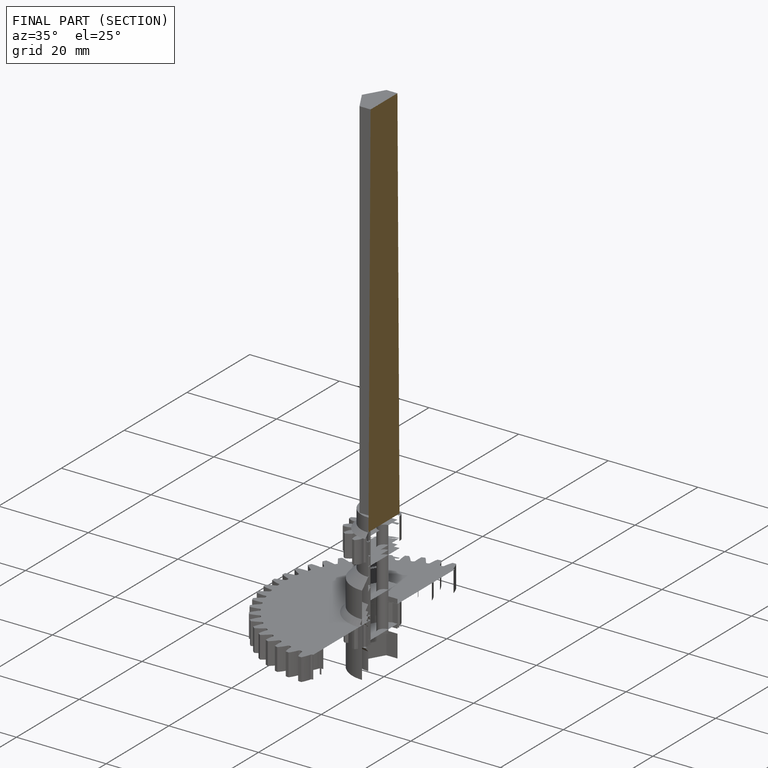
[diagram: finished part — half-section view (interior)]
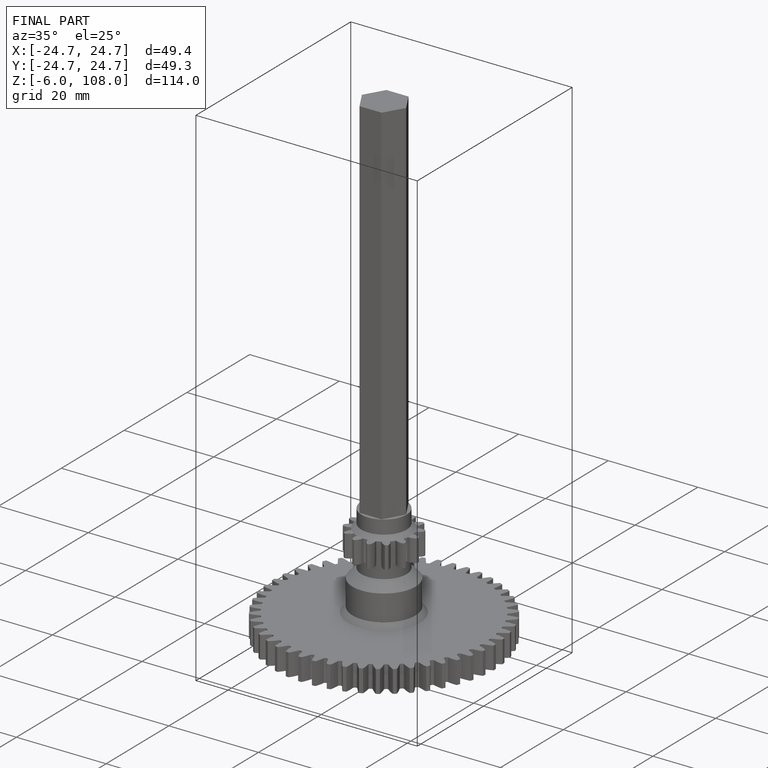
[diagram: finished part — iso view with bounding-box wireframe]
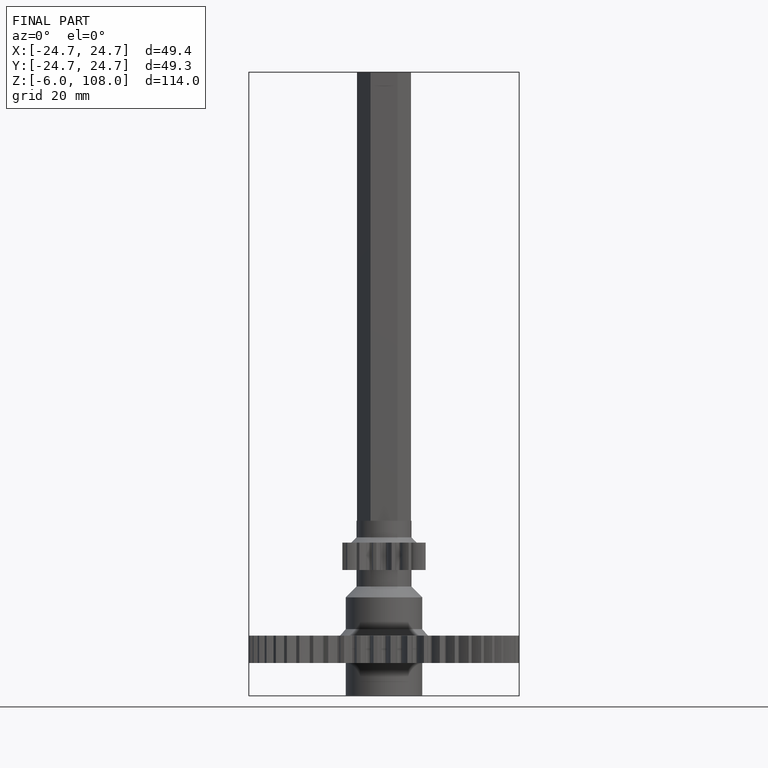
[diagram: finished part — front view with bounding-box wireframe]
